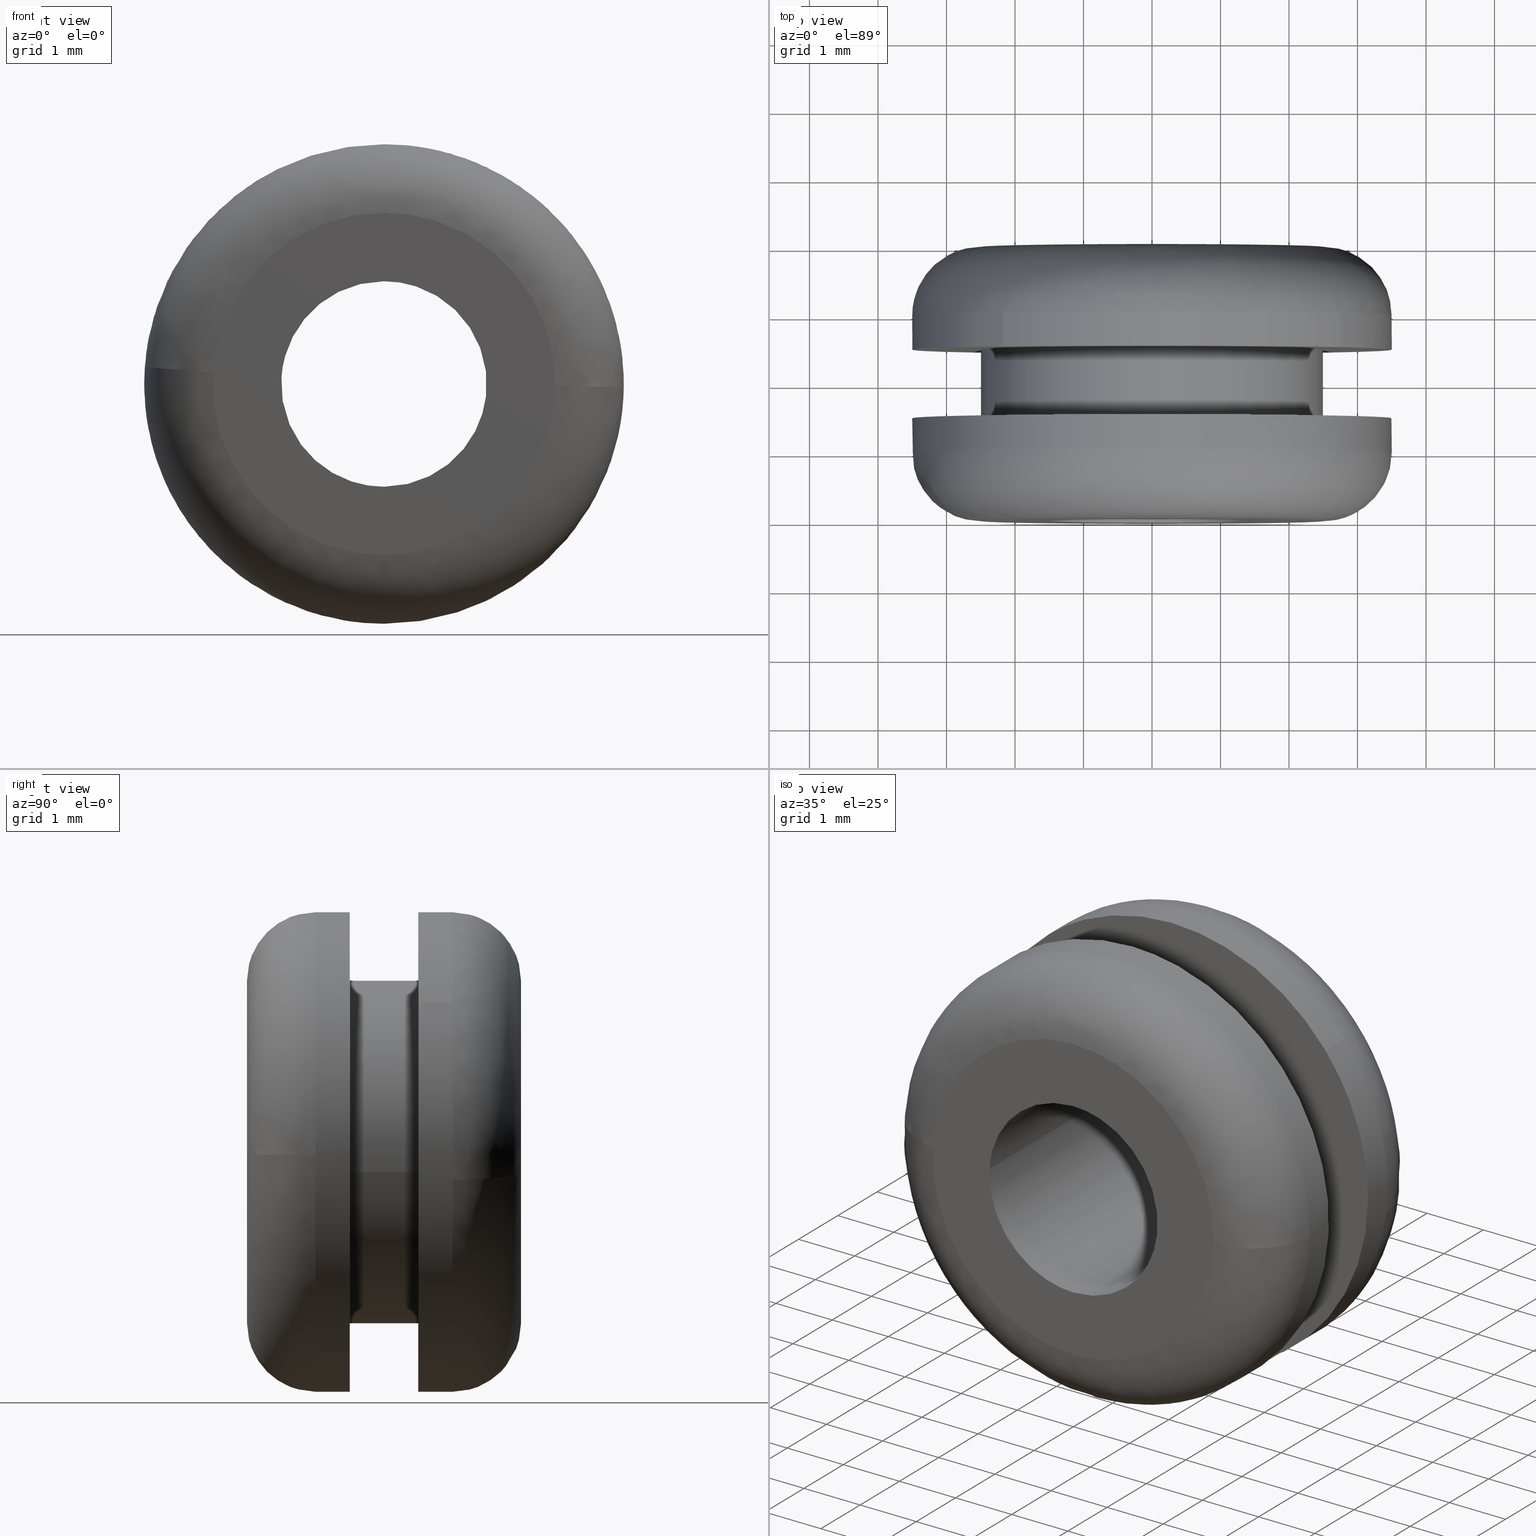
[diagram: canonical four-view strip — front | top / right | iso, engineering-drawing reading convention]
A machine part, canonical four-view strip (front | top / right | iso — engineering-drawing reading convention). The complete STEP part file that produces these views, byte-faithful:
ISO-10303-21;
HEADER;
/****************************************************************
 * Generated by software with PDE/Lib inside                    *
 * PDElib Version 4.4.1-0003, patched  Thursday August 19 11:58 *
 * International Technegroup Inc. (www.iti-oh.com)              *
 ****************************************************************/
FILE_DESCRIPTION((''),'2;1');
FILE_NAME('','2005-12-14T14:12:16',(''),(''),'','CADfix','');
FILE_SCHEMA(('AUTOMOTIVE_DESIGN'));
ENDSEC;
DATA;
#5=APPLICATION_CONTEXT('automotive design');
#6=APPLICATION_PROTOCOL_DEFINITION('Draft International Standard','automotive_design',1998,#5);
#7=PRODUCT_CONTEXT('None',#5,'mechanical');
#8=PRODUCT('grommet','','None',(#7));
#9=PRODUCT_RELATED_PRODUCT_CATEGORY('part','description',(#8));
#10=PRODUCT_DEFINITION_FORMATION('None','None',#8);
#11=PRODUCT_DEFINITION_CONTEXT('part definition',#5,'design');
#12=PRODUCT_DEFINITION('None','None',#10,#11);
#18=(NAMED_UNIT(*)PLANE_ANGLE_UNIT()SI_UNIT($,.RADIAN.));
#19=DIMENSIONAL_EXPONENTS(0.0,0.0,0.0,0.0,0.0,0.0,0.0);
#20=PLANE_ANGLE_MEASURE_WITH_UNIT(PLANE_ANGLE_MEASURE(0.017453292500000),#18);
#24=(CONVERSION_BASED_UNIT('DEGREE',#20)NAMED_UNIT(#19)PLANE_ANGLE_UNIT());
#28=(NAMED_UNIT(*)SI_UNIT($,.STERADIAN.)SOLID_ANGLE_UNIT());
#32=(LENGTH_UNIT()NAMED_UNIT(*)SI_UNIT(.MILLI.,.METRE.));
#34=UNCERTAINTY_MEASURE_WITH_UNIT(LENGTH_MEASURE(0.001000000000000),#32,'DISTANCE_ACCURACY_VALUE','');
#36=(GEOMETRIC_REPRESENTATION_CONTEXT(3)GLOBAL_UNCERTAINTY_ASSIGNED_CONTEXT((#34))GLOBAL_UNIT_ASSIGNED_CONTEXT((#24,#28,#32))REPRESENTATION_CONTEXT('None','None'));
#37=AXIS2_PLACEMENT_3D('',#38,#39,#40);
#38=CARTESIAN_POINT('',(0.0,0.0,0.0));
#39=DIRECTION('',(0.0,0.0,1.0));
#40=DIRECTION('',(1.0,0.0,0.0));
#41=ADVANCED_BREP_SHAPE_REPRESENTATION('',(#37,#1229),#36);
#42=PRODUCT_DEFINITION_SHAPE('','',#12);
#43=SHAPE_DEFINITION_REPRESENTATION(#42,#41);
#44=CARTESIAN_POINT('',(1.899551015351208,1.512500000000156,-2.939677863317372));
#45=CARTESIAN_POINT('',(2.069834292864542,1.512500000000156,-2.829644795839438));
#46=CARTESIAN_POINT('',(2.226273770972173,1.512500000000156,-2.700686041857019));
#47=CARTESIAN_POINT('',(4.926959812829193,1.512500000000157,-0.474412270884846));
#48=CARTESIAN_POINT('',(2.700686041857019,1.512500000000156,2.226273770972173));
#49=CARTESIAN_POINT('',(0.474412270884846,1.512500000000157,4.926959812829193));
#50=CARTESIAN_POINT('',(-2.226273770972173,1.512500000000156,2.700686041857018));
#51=CARTESIAN_POINT('',(-4.926959812829193,1.512500000000157,0.474412270884845));
#52=CARTESIAN_POINT('',(-2.700686041857019,1.512500000000156,-2.226273770972174));
#53=CARTESIAN_POINT('',(1.899551015351208,0.987187499993608,-2.939677863317372));
#54=CARTESIAN_POINT('',(2.069834292864542,0.987187499993608,-2.829644795839438));
#55=CARTESIAN_POINT('',(2.226273770972173,0.987187499993608,-2.700686041857019));
#56=CARTESIAN_POINT('',(4.926959812829193,0.987187499993608,-0.474412270884846));
#57=CARTESIAN_POINT('',(2.700686041857019,0.987187499993608,2.226273770972173));
#58=CARTESIAN_POINT('',(0.474412270884846,0.987187499993608,4.926959812829193));
#59=CARTESIAN_POINT('',(-2.226273770972173,0.987187499993608,2.700686041857018));
#60=CARTESIAN_POINT('',(-4.926959812829193,0.987187499993608,0.474412270884845));
#61=CARTESIAN_POINT('',(-2.700686041857019,0.987187499993608,-2.226273770972174));
#69=(BOUNDED_SURFACE()B_SPLINE_SURFACE(2,1,((#44,#53),(#45,#54),(#46,#55),(#47,#56),(#48,#57),(#49,#58),(#50,#59),(#51,#60),(#52,#61)),.UNSPECIFIED.,.F.,.F.,.U.)B_SPLINE_SURFACE_WITH_KNOTS((3,2,2,2,3),(2,2),(0.0,0.463919189857866,6.262909063081196,12.061898936304530,17.860888809527850),(0.0,1.0),.UNSPECIFIED.)GEOMETRIC_REPRESENTATION_ITEM()RATIONAL_B_SPLINE_SURFACE(((0.956886118190660,0.956886118190660),(0.976568542494924,0.976568542494924),(1.0,1.0),(0.707106781186548,0.707106781186548),(1.0,1.0),(0.707106781186548,0.707106781186548),(1.0,1.0),(0.707106781186548,0.707106781186548),(1.0,1.0)))REPRESENTATION_ITEM('')SURFACE());
#70=CARTESIAN_POINT('',(1.899550902462815,0.999999999998998,-2.939677936263048));
#71=VERTEX_POINT('',#70);
#72=CARTESIAN_POINT('',(3.499723654713332,0.999999999993827,-0.043981139593659));
#73=VERTEX_POINT('',#72);
#74=CARTESIAN_POINT('',(1.899550902462815,0.999999999998998,-2.939677936263049));
#75=CARTESIAN_POINT('',(3.476136032049741,0.999999999997180,-1.920925706134955));
#76=CARTESIAN_POINT('',(3.499723654713332,0.999999999993827,-0.043981139593659));
#84=(BOUNDED_CURVE()B_SPLINE_CURVE(2,(#74,#75,#76),.UNSPECIFIED.,.F.,.U.)B_SPLINE_CURVE_WITH_KNOTS((3,3),(0.092934731225705,0.247784295921535),.UNSPECIFIED.)CURVE()GEOMETRIC_REPRESENTATION_ITEM()RATIONAL_B_SPLINE_CURVE((0.863190106682967,0.816652486740030,0.994854295643567))REPRESENTATION_ITEM(''));
#85=EDGE_CURVE('',#71,#73,#84,.T.);
#86=ORIENTED_EDGE('',*,*,#85,.F.);
#87=CARTESIAN_POINT('',(1.899550911907788,1.500000000000000,-2.939677930160084));
#88=VERTEX_POINT('',#87);
#89=CARTESIAN_POINT('',(1.899550911907788,1.500000000000000,-2.939677930160084));
#90=CARTESIAN_POINT('',(1.899550902462815,0.999999999998998,-2.939677936263048));
#91=QUASI_UNIFORM_CURVE('',1,(#89,#90),.UNSPECIFIED.,.F.,.U.);
#92=EDGE_CURVE('',#88,#71,#91,.T.);
#93=ORIENTED_EDGE('',*,*,#92,.F.);
#94=CARTESIAN_POINT('',(0.0,1.500000000000000,3.500000000000000));
#95=VERTEX_POINT('',#94);
#96=CARTESIAN_POINT('',(1.899550911907787,1.500000000000000,-2.939677930160083));
#97=CARTESIAN_POINT('',(3.500000000000000,1.500000000000000,-1.905505356738358));
#98=CARTESIAN_POINT('',(3.500000000000000,1.500000000000000,-3.061516E-016));
#99=CARTESIAN_POINT('',(3.500000000000000,1.500000000000000,3.500000000000000));
#100=CARTESIAN_POINT('',(0.0,1.500000000000000,3.500000000000000));
#108=(BOUNDED_CURVE()B_SPLINE_CURVE(2,(#96,#97,#98,#99,#100),.UNSPECIFIED.,.F.,.U.)B_SPLINE_CURVE_WITH_KNOTS((3,2,3),(0.092934732206239,0.250000000000000,0.500000000000000),.UNSPECIFIED.)CURVE()GEOMETRIC_REPRESENTATION_ITEM()RATIONAL_B_SPLINE_CURVE((0.863190106093599,0.815986592608353,1.0,0.707106781186547,1.0))REPRESENTATION_ITEM(''));
#109=EDGE_CURVE('',#88,#95,#108,.T.);
#110=ORIENTED_EDGE('',*,*,#109,.T.);
#111=CARTESIAN_POINT('',(-2.700686089596179,1.500000000000000,-2.226273713059941));
#112=VERTEX_POINT('',#111);
#113=CARTESIAN_POINT('',(0.0,1.500000000000000,3.500000000000000));
#114=CARTESIAN_POINT('',(-3.500000000000000,1.500000000000000,3.500000000000000));
#115=CARTESIAN_POINT('',(-3.500000000000000,1.500000000000000,-3.061516E-016));
#116=CARTESIAN_POINT('',(-3.499999999999999,1.500000000000000,-1.256628318292117));
#117=CARTESIAN_POINT('',(-2.700686089596178,1.500000000000000,-2.226273713059940));
#125=(BOUNDED_CURVE()B_SPLINE_CURVE(2,(#113,#114,#115,#116,#117),.UNSPECIFIED.,.F.,.U.)B_SPLINE_CURVE_WITH_KNOTS((3,2,3),(0.500000000000000,0.750000000000000,0.860504619373458),.UNSPECIFIED.)CURVE()GEOMETRIC_REPRESENTATION_ITEM()RATIONAL_B_SPLINE_CURVE((1.0,0.707106781186547,1.0,0.870535785351809,0.855522720801075))REPRESENTATION_ITEM(''));
#126=EDGE_CURVE('',#95,#112,#125,.T.);
#127=ORIENTED_EDGE('',*,*,#126,.T.);
#128=CARTESIAN_POINT('',(-2.700686205911196,0.999999999999998,-2.226273571958513));
#129=VERTEX_POINT('',#128);
#130=CARTESIAN_POINT('',(-2.700686089596179,1.500000000000000,-2.226273713059941));
#131=CARTESIAN_POINT('',(-2.700686205911196,0.999999999999998,-2.226273571958513));
#132=QUASI_UNIFORM_CURVE('',1,(#130,#131),.UNSPECIFIED.,.F.,.U.);
#133=EDGE_CURVE('',#112,#129,#132,.T.);
#134=ORIENTED_EDGE('',*,*,#133,.T.);
#135=CARTESIAN_POINT('',(-3.491479858441498,0.999999999993767,0.244066380514253));
#136=VERTEX_POINT('',#135);
#137=CARTESIAN_POINT('',(-3.491479858441499,0.999999999993767,0.244066380514253));
#138=CARTESIAN_POINT('',(-3.500000000000000,1.0,0.122181905561697));
#139=CARTESIAN_POINT('',(-3.500000000000000,1.0,-3.061516E-016));
#140=CARTESIAN_POINT('',(-3.500000000000000,1.0,-1.256628111856989));
#141=CARTESIAN_POINT('',(-2.700686205911195,0.999999999999998,-2.226273571958514));
#149=(BOUNDED_CURVE()B_SPLINE_CURVE(2,(#137,#138,#139,#140,#141),.UNSPECIFIED.,.F.,.U.)B_SPLINE_CURVE_WITH_KNOTS((3,2,3),(0.737833686535114,0.750000000000000,0.860504603570302),.UNSPECIFIED.)CURVE()GEOMETRIC_REPRESENTATION_ITEM()RATIONAL_B_SPLINE_CURVE((0.972879876387024,0.985746277152705,1.0,0.870535803866358,0.855522725095084))REPRESENTATION_ITEM(''));
#150=EDGE_CURVE('',#136,#129,#149,.T.);
#151=ORIENTED_EDGE('',*,*,#150,.F.);
#152=CARTESIAN_POINT('',(0.0,1.0,3.500000000000000));
#153=VERTEX_POINT('',#152);
#154=CARTESIAN_POINT('',(0.0,1.0,3.500000000000000));
#155=CARTESIAN_POINT('',(-3.263878965432774,1.0,3.499999999999999));
#156=CARTESIAN_POINT('',(-3.491479858441499,0.999999999993767,0.244066380514253));
#164=(BOUNDED_CURVE()B_SPLINE_CURVE(2,(#154,#155,#156),.UNSPECIFIED.,.F.,.U.)B_SPLINE_CURVE_WITH_KNOTS((3,3),(0.500000000000000,0.737833686535114),.UNSPECIFIED.)CURVE()GEOMETRIC_REPRESENTATION_ITEM()RATIONAL_B_SPLINE_CURVE((1.0,0.721360504033843,0.972879876387023))REPRESENTATION_ITEM(''));
#165=EDGE_CURVE('',#153,#136,#164,.T.);
#166=ORIENTED_EDGE('',*,*,#165,.F.);
#167=CARTESIAN_POINT('',(3.499723654713332,0.999999999993827,-0.043981139593659));
#168=CARTESIAN_POINT('',(3.500000000000000,1.0,-0.021991437973539));
#169=CARTESIAN_POINT('',(3.500000000000000,1.0,-3.061516E-016));
#170=CARTESIAN_POINT('',(3.500000000000000,1.0,3.500000000000000));
#171=CARTESIAN_POINT('',(0.0,1.0,3.500000000000000));
#179=(BOUNDED_CURVE()B_SPLINE_CURVE(2,(#167,#168,#169,#170,#171),.UNSPECIFIED.,.F.,.U.)B_SPLINE_CURVE_WITH_KNOTS((3,2,3),(0.247784295921535,0.250000000000000,0.500000000000000),.UNSPECIFIED.)CURVE()GEOMETRIC_REPRESENTATION_ITEM()RATIONAL_B_SPLINE_CURVE((0.994854295643567,0.997404141202081,1.0,0.707106781186547,1.0))REPRESENTATION_ITEM(''));
#180=EDGE_CURVE('',#73,#153,#179,.T.);
#181=ORIENTED_EDGE('',*,*,#180,.F.);
#182=EDGE_LOOP('',(#86,#93,#110,#127,#134,#151,#166,#181));
#183=FACE_OUTER_BOUND('',#182,.T.);
#184=ADVANCED_FACE('',(#183),#69,.T.);
#185=CARTESIAN_POINT('',(-2.700686041857019,1.512500000000156,-2.226273770972174));
#186=CARTESIAN_POINT('',(-0.718207725037595,1.512500000000156,-4.631212277785017));
#187=CARTESIAN_POINT('',(1.899551015351208,1.512500000000156,-2.939677863317372));
#188=CARTESIAN_POINT('',(-2.700686041857019,0.987187499993608,-2.226273770972174));
#189=CARTESIAN_POINT('',(-0.718207725037595,0.987187499993608,-4.631212277785017));
#190=CARTESIAN_POINT('',(1.899551015351208,0.987187499993608,-2.939677863317372));
#198=(BOUNDED_SURFACE()B_SPLINE_SURFACE(2,1,((#185,#188),(#186,#189),(#187,#190)),.UNSPECIFIED.,.F.,.F.,.U.)B_SPLINE_SURFACE_WITH_KNOTS((3,3),(2,2),(0.0,5.329218847202446),(0.0,1.0),.UNSPECIFIED.)GEOMETRIC_REPRESENTATION_ITEM()RATIONAL_B_SPLINE_SURFACE(((1.0,1.0),(0.730538238691624,0.730538238691624),(0.956886118190660,0.956886118190660)))REPRESENTATION_ITEM('')SURFACE());
#199=CARTESIAN_POINT('',(0.0,1.0,-3.500000000000000));
#200=VERTEX_POINT('',#199);
#201=CARTESIAN_POINT('',(0.0,1.0,-3.500000000000000));
#202=CARTESIAN_POINT('',(1.032416178883929,1.0,-3.500000000000001));
#203=CARTESIAN_POINT('',(1.899550902462815,0.999999999998998,-2.939677936263049));
#211=(BOUNDED_CURVE()B_SPLINE_CURVE(2,(#201,#202,#203),.UNSPECIFIED.,.F.,.U.)B_SPLINE_CURVE_WITH_KNOTS((3,3),(0.0,0.092934731225705),.UNSPECIFIED.)CURVE()GEOMETRIC_REPRESENTATION_ITEM()RATIONAL_B_SPLINE_CURVE((1.0,0.891120189726961,0.863190106682967))REPRESENTATION_ITEM(''));
#212=EDGE_CURVE('',#200,#71,#211,.T.);
#213=ORIENTED_EDGE('',*,*,#212,.F.);
#214=CARTESIAN_POINT('',(-2.700686205911196,0.999999999999998,-2.226273571958513));
#215=CARTESIAN_POINT('',(-1.650707480983870,1.0,-3.500000000000001));
#216=CARTESIAN_POINT('',(0.0,1.0,-3.500000000000000));
#224=(BOUNDED_CURVE()B_SPLINE_CURVE(2,(#214,#215,#216),.UNSPECIFIED.,.F.,.U.)B_SPLINE_CURVE_WITH_KNOTS((3,3),(0.860504603570303,1.0),.UNSPECIFIED.)CURVE()GEOMETRIC_REPRESENTATION_ITEM()RATIONAL_B_SPLINE_CURVE((0.855522725095084,0.836570977320189,1.0))REPRESENTATION_ITEM(''));
#225=EDGE_CURVE('',#129,#200,#224,.T.);
#226=ORIENTED_EDGE('',*,*,#225,.F.);
#227=ORIENTED_EDGE('',*,*,#133,.F.);
#228=CARTESIAN_POINT('',(0.0,1.500000000000000,-3.500000000000000));
#229=VERTEX_POINT('',#228);
#230=CARTESIAN_POINT('',(-2.700686089596178,1.500000000000000,-2.226273713059940));
#231=CARTESIAN_POINT('',(-1.650707257445918,1.500000000000000,-3.500000000000000));
#232=CARTESIAN_POINT('',(0.0,1.500000000000000,-3.500000000000000));
#240=(BOUNDED_CURVE()B_SPLINE_CURVE(2,(#230,#231,#232),.UNSPECIFIED.,.F.,.U.)B_SPLINE_CURVE_WITH_KNOTS((3,3),(0.860504619373459,1.0),.UNSPECIFIED.)CURVE()GEOMETRIC_REPRESENTATION_ITEM()RATIONAL_B_SPLINE_CURVE((0.855522720801075,0.836570995834738,1.0))REPRESENTATION_ITEM(''));
#241=EDGE_CURVE('',#112,#229,#240,.T.);
#242=ORIENTED_EDGE('',*,*,#241,.T.);
#243=CARTESIAN_POINT('',(0.0,1.500000000000000,-3.500000000000000));
#244=CARTESIAN_POINT('',(1.032416191107638,1.500000000000000,-3.500000000000000));
#245=CARTESIAN_POINT('',(1.899550911907787,1.500000000000000,-2.939677930160083));
#253=(BOUNDED_CURVE()B_SPLINE_CURVE(2,(#243,#244,#245),.UNSPECIFIED.,.F.,.U.)B_SPLINE_CURVE_WITH_KNOTS((3,3),(0.0,0.092934732206239),.UNSPECIFIED.)CURVE()GEOMETRIC_REPRESENTATION_ITEM()RATIONAL_B_SPLINE_CURVE((1.0,0.891120188578194,0.863190106093599))REPRESENTATION_ITEM(''));
#254=EDGE_CURVE('',#229,#88,#253,.T.);
#255=ORIENTED_EDGE('',*,*,#254,.T.);
#256=ORIENTED_EDGE('',*,*,#92,.T.);
#257=EDGE_LOOP('',(#213,#226,#227,#242,#255,#256));
#258=FACE_OUTER_BOUND('',#257,.T.);
#259=ADVANCED_FACE('',(#258),#198,.T.);
#260=CARTESIAN_POINT('',(2.482523815909166,2.525000000000000,-0.295085586641897));
#261=CARTESIAN_POINT('',(2.490969038621514,2.525000000000000,-0.224036821594944));
#262=CARTESIAN_POINT('',(2.495336996054667,2.525000000000000,-0.152621348837143));
#263=CARTESIAN_POINT('',(2.647958344891809,2.525000000000000,2.342715647217524));
#264=CARTESIAN_POINT('',(0.152621348837143,2.525000000000000,2.495336996054666));
#265=CARTESIAN_POINT('',(-2.342715647217524,2.525000000000000,2.647958344891809));
#266=CARTESIAN_POINT('',(-2.495336996054667,2.525000000000000,0.152621348837142));
#267=CARTESIAN_POINT('',(2.482523815909166,1.474375000000000,-0.295085586641897));
#268=CARTESIAN_POINT('',(2.490969038621514,1.474375000000000,-0.224036821594944));
#269=CARTESIAN_POINT('',(2.495336996054667,1.474375000000000,-0.152621348837143));
#270=CARTESIAN_POINT('',(2.647958344891809,1.474375000000000,2.342715647217524));
#271=CARTESIAN_POINT('',(0.152621348837143,1.474375000000000,2.495336996054666));
#272=CARTESIAN_POINT('',(-2.342715647217524,1.474375000000000,2.647958344891809));
#273=CARTESIAN_POINT('',(-2.495336996054667,1.474375000000000,0.152621348837142));
#281=(BOUNDED_SURFACE()B_SPLINE_SURFACE(2,1,((#260,#267),(#261,#268),(#262,#269),(#263,#270),(#264,#271),(#265,#272),(#266,#273)),.UNSPECIFIED.,.F.,.F.,.U.)B_SPLINE_SURFACE_WITH_KNOTS((3,2,2,3),(2,2),(0.0,0.165685424949238,4.307821048680188,8.449956672411137),(0.0,1.0),.UNSPECIFIED.)GEOMETRIC_REPRESENTATION_ITEM()RATIONAL_B_SPLINE_SURFACE(((0.977505800795127,0.977505800795127),(0.988284271247462,0.988284271247462),(1.0,1.0),(0.707106781186548,0.707106781186548),(1.0,1.0),(0.707106781186548,0.707106781186548),(1.0,1.0)))REPRESENTATION_ITEM('')SURFACE());
#282=CARTESIAN_POINT('',(2.482524111118502,1.499999999999978,-0.295083103055794));
#283=VERTEX_POINT('',#282);
#284=CARTESIAN_POINT('',(0.0,1.500000000000000,2.500000000000000));
#285=VERTEX_POINT('',#284);
#286=CARTESIAN_POINT('',(2.482524111118501,1.499999999999978,-0.295083103055794));
#287=CARTESIAN_POINT('',(2.500000000000000,1.500000000000000,-0.148059044208833));
#288=CARTESIAN_POINT('',(2.500000000000000,1.500000000000000,-3.061516E-016));
#289=CARTESIAN_POINT('',(2.500000000000000,1.500000000000000,2.500000000000000));
#290=CARTESIAN_POINT('',(0.0,1.500000000000000,2.500000000000000));
#298=(BOUNDED_CURVE()B_SPLINE_CURVE(2,(#286,#287,#288,#289,#290),.UNSPECIFIED.,.F.,.U.)B_SPLINE_CURVE_WITH_KNOTS((3,2,3),(0.229562642591221,0.250000000000000,0.500000000000000),.UNSPECIFIED.)CURVE()GEOMETRIC_REPRESENTATION_ITEM()RATIONAL_B_SPLINE_CURVE((0.956027085583204,0.976056146418007,1.0,0.707106781186548,1.0))REPRESENTATION_ITEM(''));
#299=EDGE_CURVE('',#283,#285,#298,.T.);
#300=ORIENTED_EDGE('',*,*,#299,.F.);
#301=CARTESIAN_POINT('',(2.482524107474519,2.500000000000000,-0.295083133712754));
#302=VERTEX_POINT('',#301);
#303=CARTESIAN_POINT('',(2.482524107474519,2.500000000000000,-0.295083133712754));
#304=CARTESIAN_POINT('',(2.482524111118502,1.499999999999978,-0.295083103055794));
#305=QUASI_UNIFORM_CURVE('',1,(#303,#304),.UNSPECIFIED.,.F.,.U.);
#306=EDGE_CURVE('',#302,#283,#305,.T.);
#307=ORIENTED_EDGE('',*,*,#306,.F.);
#308=CARTESIAN_POINT('',(0.0,2.500000000000000,2.500000000000000));
#309=VERTEX_POINT('',#308);
#310=CARTESIAN_POINT('',(2.482524107474519,2.500000000000000,-0.295083133712754));
#311=CARTESIAN_POINT('',(2.500000000000000,2.500000000000000,-0.148059059699360));
#312=CARTESIAN_POINT('',(2.500000000000000,2.500000000000000,-3.061516E-016));
#313=CARTESIAN_POINT('',(2.500000000000000,2.500000000000000,2.500000000000000));
#314=CARTESIAN_POINT('',(0.0,2.500000000000000,2.500000000000000));
#322=(BOUNDED_CURVE()B_SPLINE_CURVE(2,(#310,#311,#312,#313,#314),.UNSPECIFIED.,.F.,.U.)B_SPLINE_CURVE_WITH_KNOTS((3,2,3),(0.229562640504181,0.250000000000000,0.500000000000000),.UNSPECIFIED.)CURVE()GEOMETRIC_REPRESENTATION_ITEM()RATIONAL_B_SPLINE_CURVE((0.956027081492513,0.976056143972888,1.0,0.707106781186548,1.0))REPRESENTATION_ITEM(''));
#323=EDGE_CURVE('',#302,#309,#322,.T.);
#324=ORIENTED_EDGE('',*,*,#323,.T.);
#325=CARTESIAN_POINT('',(-2.495337147131862,2.500000000000000,0.152618878706711));
#326=VERTEX_POINT('',#325);
#327=CARTESIAN_POINT('',(0.0,2.500000000000000,2.500000000000000));
#328=CARTESIAN_POINT('',(-2.351767499624391,2.500000000000000,2.499999999999999));
#329=CARTESIAN_POINT('',(-2.495337147131862,2.500000000000000,0.152618878706711));
#337=(BOUNDED_CURVE()B_SPLINE_CURVE(2,(#327,#328,#329),.UNSPECIFIED.,.F.,.U.)B_SPLINE_CURVE_WITH_KNOTS((3,3),(0.500000000000000,0.739333133045804),.UNSPECIFIED.)CURVE()GEOMETRIC_REPRESENTATION_ITEM()RATIONAL_B_SPLINE_CURVE((1.0,0.719603793174025,0.976072407738609))REPRESENTATION_ITEM(''));
#338=EDGE_CURVE('',#309,#326,#337,.T.);
#339=ORIENTED_EDGE('',*,*,#338,.T.);
#340=CARTESIAN_POINT('',(-2.495337149020197,1.499999999999977,0.152618847831694));
#341=VERTEX_POINT('',#340);
#342=CARTESIAN_POINT('',(-2.495337147131862,2.500000000000000,0.152618878706711));
#343=CARTESIAN_POINT('',(-2.495337149020197,1.499999999999977,0.152618847831694));
#344=QUASI_UNIFORM_CURVE('',1,(#342,#343),.UNSPECIFIED.,.F.,.U.);
#345=EDGE_CURVE('',#326,#341,#344,.T.);
#346=ORIENTED_EDGE('',*,*,#345,.T.);
#347=CARTESIAN_POINT('',(0.0,1.500000000000000,2.500000000000000));
#348=CARTESIAN_POINT('',(-2.351767528777383,1.500000000000000,2.500000000000000));
#349=CARTESIAN_POINT('',(-2.495337149020198,1.499999999999977,0.152618847831694));
#357=(BOUNDED_CURVE()B_SPLINE_CURVE(2,(#347,#348,#349),.UNSPECIFIED.,.F.,.U.)B_SPLINE_CURVE_WITH_KNOTS((3,3),(0.500000000000000,0.739333135180741),.UNSPECIFIED.)CURVE()GEOMETRIC_REPRESENTATION_ITEM()RATIONAL_B_SPLINE_CURVE((1.0,0.719603790672791,0.976072412314192))REPRESENTATION_ITEM(''));
#358=EDGE_CURVE('',#285,#341,#357,.T.);
#359=ORIENTED_EDGE('',*,*,#358,.F.);
#360=EDGE_LOOP('',(#300,#307,#324,#339,#346,#359));
#361=FACE_OUTER_BOUND('',#360,.T.);
#362=ADVANCED_FACE('',(#361),#281,.T.);
#363=CARTESIAN_POINT('',(-2.495336996054667,2.525000000000000,0.152621348837142));
#364=CARTESIAN_POINT('',(-2.647958344891809,2.525000000000000,-2.342715647217524));
#365=CARTESIAN_POINT('',(-0.152621348837143,2.525000000000000,-2.495336996054667));
#366=CARTESIAN_POINT('',(2.203858727098751,2.525000000000000,-2.639465491831319));
#367=CARTESIAN_POINT('',(2.482523815909166,2.525000000000000,-0.295085586641897));
#368=CARTESIAN_POINT('',(-2.495336996054667,1.474375000000000,0.152621348837142));
#369=CARTESIAN_POINT('',(-2.647958344891809,1.474375000000000,-2.342715647217524));
#370=CARTESIAN_POINT('',(-0.152621348837143,1.474375000000000,-2.495336996054667));
#371=CARTESIAN_POINT('',(2.203858727098751,1.474375000000000,-2.639465491831319));
#372=CARTESIAN_POINT('',(2.482523815909166,1.474375000000000,-0.295085586641897));
#380=(BOUNDED_SURFACE()B_SPLINE_SURFACE(2,1,((#363,#368),(#364,#369),(#365,#370),(#366,#371),(#367,#372)),.UNSPECIFIED.,.F.,.F.,.U.)B_SPLINE_SURFACE_WITH_KNOTS((3,2,3),(2,2),(0.0,4.142135623730949,8.118585822512660),(0.0,1.0),.UNSPECIFIED.)GEOMETRIC_REPRESENTATION_ITEM()RATIONAL_B_SPLINE_SURFACE(((1.0,1.0),(0.707106781186548,0.707106781186548),(1.0,1.0),(0.718822509939086,0.718822509939086),(0.977505800795127,0.977505800795127)))REPRESENTATION_ITEM('')SURFACE());
#381=CARTESIAN_POINT('',(0.0,1.500000000000000,-2.500000000000000));
#382=VERTEX_POINT('',#381);
#383=CARTESIAN_POINT('',(0.0,1.500000000000000,-2.500000000000000));
#384=CARTESIAN_POINT('',(2.220438551903459,1.500000000000000,-2.500000000000001));
#385=CARTESIAN_POINT('',(2.482524111118501,1.499999999999978,-0.295083103055794));
#393=(BOUNDED_CURVE()B_SPLINE_CURVE(2,(#383,#384,#385),.UNSPECIFIED.,.F.,.U.)B_SPLINE_CURVE_WITH_KNOTS((3,3),(0.0,0.229562642591221),.UNSPECIFIED.)CURVE()GEOMETRIC_REPRESENTATION_ITEM()RATIONAL_B_SPLINE_CURVE((1.0,0.731050634768540,0.956027085583204))REPRESENTATION_ITEM(''));
#394=EDGE_CURVE('',#382,#283,#393,.T.);
#395=ORIENTED_EDGE('',*,*,#394,.F.);
#396=CARTESIAN_POINT('',(-2.495337149020198,1.499999999999977,0.152618847831694));
#397=CARTESIAN_POINT('',(-2.500000000000000,1.500000000000000,0.076380654237556));
#398=CARTESIAN_POINT('',(-2.500000000000000,1.500000000000000,-3.061516E-016));
#399=CARTESIAN_POINT('',(-2.500000000000000,1.500000000000000,-2.500000000000000));
#400=CARTESIAN_POINT('',(0.0,1.500000000000000,-2.500000000000000));
#408=(BOUNDED_CURVE()B_SPLINE_CURVE(2,(#396,#397,#398,#399,#400),.UNSPECIFIED.,.F.,.U.)B_SPLINE_CURVE_WITH_KNOTS((3,2,3),(0.739333135180741,0.750000000000000,1.0),.UNSPECIFIED.)CURVE()GEOMETRIC_REPRESENTATION_ITEM()RATIONAL_B_SPLINE_CURVE((0.976072412314192,0.987502990513757,1.0,0.707106781186548,1.0))REPRESENTATION_ITEM(''));
#409=EDGE_CURVE('',#341,#382,#408,.T.);
#410=ORIENTED_EDGE('',*,*,#409,.F.);
#411=ORIENTED_EDGE('',*,*,#345,.F.);
#412=CARTESIAN_POINT('',(0.0,2.500000000000000,-2.500000000000000));
#413=VERTEX_POINT('',#412);
#414=CARTESIAN_POINT('',(-2.495337147131862,2.500000000000000,0.152618878706711));
#415=CARTESIAN_POINT('',(-2.500000000000000,2.500000000000000,0.076380669718347));
#416=CARTESIAN_POINT('',(-2.500000000000000,2.500000000000000,-3.061516E-016));
#417=CARTESIAN_POINT('',(-2.500000000000000,2.500000000000000,-2.500000000000000));
#418=CARTESIAN_POINT('',(0.0,2.500000000000000,-2.500000000000000));
#426=(BOUNDED_CURVE()B_SPLINE_CURVE(2,(#414,#415,#416,#417,#418),.UNSPECIFIED.,.F.,.U.)B_SPLINE_CURVE_WITH_KNOTS((3,2,3),(0.739333133045804,0.750000000000000,1.0),.UNSPECIFIED.)CURVE()GEOMETRIC_REPRESENTATION_ITEM()RATIONAL_B_SPLINE_CURVE((0.976072407738609,0.987502988012523,1.0,0.707106781186548,1.0))REPRESENTATION_ITEM(''));
#427=EDGE_CURVE('',#326,#413,#426,.T.);
#428=ORIENTED_EDGE('',*,*,#427,.T.);
#429=CARTESIAN_POINT('',(0.0,2.500000000000000,-2.500000000000000));
#430=CARTESIAN_POINT('',(2.220438524289997,2.500000000000000,-2.500000000000000));
#431=CARTESIAN_POINT('',(2.482524107474519,2.500000000000000,-0.295083133712754));
#439=(BOUNDED_CURVE()B_SPLINE_CURVE(2,(#429,#430,#431),.UNSPECIFIED.,.F.,.U.)B_SPLINE_CURVE_WITH_KNOTS((3,3),(0.0,0.229562640504181),.UNSPECIFIED.)CURVE()GEOMETRIC_REPRESENTATION_ITEM()RATIONAL_B_SPLINE_CURVE((1.0,0.731050637213660,0.956027081492513))REPRESENTATION_ITEM(''));
#440=EDGE_CURVE('',#413,#302,#439,.T.);
#441=ORIENTED_EDGE('',*,*,#440,.T.);
#442=ORIENTED_EDGE('',*,*,#306,.T.);
#443=EDGE_LOOP('',(#395,#410,#411,#428,#441,#442));
#444=FACE_OUTER_BOUND('',#443,.T.);
#445=ADVANCED_FACE('',(#444),#380,.T.);
#446=CARTESIAN_POINT('',(-2.178801228231668,3.012500000007188,2.739128548983447));
#447=CARTESIAN_POINT('',(-4.917929777215115,3.012500000007187,0.560327320751779));
#448=CARTESIAN_POINT('',(-2.739128548983448,3.012500000007188,-2.178801228231668));
#449=CARTESIAN_POINT('',(-0.560327320751780,3.012500000007187,-4.917929777215116));
#450=CARTESIAN_POINT('',(2.178801228231668,3.012500000007188,-2.739128548983448));
#451=CARTESIAN_POINT('',(4.917929777215115,3.012500000007187,-0.560327320751780));
#452=CARTESIAN_POINT('',(2.739128548983448,3.012500000007188,2.178801228231667));
#453=CARTESIAN_POINT('',(-2.178801228231668,2.487187499999820,2.739128548983447));
#454=CARTESIAN_POINT('',(-4.917929777215115,2.487187499999820,0.560327320751779));
#455=CARTESIAN_POINT('',(-2.739128548983448,2.487187499999820,-2.178801228231668));
#456=CARTESIAN_POINT('',(-0.560327320751780,2.487187499999820,-4.917929777215116));
#457=CARTESIAN_POINT('',(2.178801228231668,2.487187499999820,-2.739128548983448));
#458=CARTESIAN_POINT('',(4.917929777215115,2.487187499999820,-0.560327320751780));
#459=CARTESIAN_POINT('',(2.739128548983448,2.487187499999820,2.178801228231667));
#467=(BOUNDED_SURFACE()B_SPLINE_SURFACE(2,1,((#446,#453),(#447,#454),(#448,#455),(#449,#456),(#450,#457),(#451,#458),(#452,#459)),.UNSPECIFIED.,.F.,.F.,.U.)B_SPLINE_SURFACE_WITH_KNOTS((3,2,2,3),(2,2),(0.0,5.798989873223329,11.597979746446660,17.396969619669989),(0.0,1.0),.UNSPECIFIED.)GEOMETRIC_REPRESENTATION_ITEM()RATIONAL_B_SPLINE_SURFACE(((1.0,1.0),(0.707106781186548,0.707106781186548),(1.0,1.0),(0.707106781186548,0.707106781186548),(1.0,1.0),(0.707106781186548,0.707106781186548),(1.0,1.0)))REPRESENTATION_ITEM('')SURFACE());
#468=CARTESIAN_POINT('',(-2.178800832572884,3.000000000001514,2.739128863704560));
#469=VERTEX_POINT('',#468);
#470=CARTESIAN_POINT('',(-3.499999999999999,3.000000000007013,6.637321E-016));
#471=VERTEX_POINT('',#470);
#472=CARTESIAN_POINT('',(-2.178800832572885,3.000000000001514,2.739128863704560));
#473=CARTESIAN_POINT('',(-3.499999999999992,3.000000000003630,1.688200216047647));
#474=CARTESIAN_POINT('',(-3.499999999999999,3.000000000007013,6.637321E-016));
#482=(BOUNDED_CURVE()B_SPLINE_CURVE(2,(#472,#473,#474),.UNSPECIFIED.,.F.,.U.)B_SPLINE_CURVE_WITH_KNOTS((3,3),(0.607863833660169,0.749999999999999),.UNSPECIFIED.)CURVE()GEOMETRIC_REPRESENTATION_ITEM()RATIONAL_B_SPLINE_CURVE((0.856305632691425,0.833477122923691,0.999999999999998))REPRESENTATION_ITEM(''));
#483=EDGE_CURVE('',#469,#471,#482,.T.);
#484=ORIENTED_EDGE('',*,*,#483,.T.);
#485=CARTESIAN_POINT('',(0.0,3.0,-3.500000000000000));
#486=VERTEX_POINT('',#485);
#487=CARTESIAN_POINT('',(-3.500000000000000,3.000000000007014,6.637321E-016));
#488=CARTESIAN_POINT('',(-3.500000000000001,3.0,-3.500000000000000));
#489=CARTESIAN_POINT('',(0.0,3.0,-3.500000000000000));
#497=(BOUNDED_CURVE()B_SPLINE_CURVE(2,(#487,#488,#489),.UNSPECIFIED.,.F.,.U.)B_SPLINE_CURVE_WITH_KNOTS((3,3),(0.750000000000000,1.0),.UNSPECIFIED.)CURVE()GEOMETRIC_REPRESENTATION_ITEM()RATIONAL_B_SPLINE_CURVE((1.0,0.707106781186547,1.0))REPRESENTATION_ITEM(''));
#498=EDGE_CURVE('',#471,#486,#497,.T.);
#499=ORIENTED_EDGE('',*,*,#498,.T.);
#500=CARTESIAN_POINT('',(3.476590735747605,3.000000000006980,-0.404124802646315));
#501=VERTEX_POINT('',#500);
#502=CARTESIAN_POINT('',(0.0,3.0,-3.500000000000000));
#503=CARTESIAN_POINT('',(3.116720952891494,3.0,-3.500000000000002));
#504=CARTESIAN_POINT('',(3.476590735747605,3.000000000006981,-0.404124802646315));
#512=(BOUNDED_CURVE()B_SPLINE_CURVE(2,(#502,#503,#504),.UNSPECIFIED.,.F.,.U.)B_SPLINE_CURVE_WITH_KNOTS((3,3),(0.0,0.229999999999849),.UNSPECIFIED.)CURVE()GEOMETRIC_REPRESENTATION_ITEM()RATIONAL_B_SPLINE_CURVE((1.0,0.730538238691801,0.956886118190362))REPRESENTATION_ITEM(''));
#513=EDGE_CURVE('',#486,#501,#512,.T.);
#514=ORIENTED_EDGE('',*,*,#513,.T.);
#515=CARTESIAN_POINT('',(2.739128864374870,2.999999999999987,2.178800831730190));
#516=VERTEX_POINT('',#515);
#517=CARTESIAN_POINT('',(3.476590735747605,3.000000000006981,-0.404124802646315));
#518=CARTESIAN_POINT('',(3.500000000000000,3.000000000000000,-0.202740401844141));
#519=CARTESIAN_POINT('',(3.500000000000000,3.0,-3.061516E-016));
#520=CARTESIAN_POINT('',(3.500000000000000,3.000000000000000,1.222254148548687));
#521=CARTESIAN_POINT('',(2.739128864374871,2.999999999999988,2.178800831730190));
#529=(BOUNDED_CURVE()B_SPLINE_CURVE(2,(#517,#518,#519,#520,#521),.UNSPECIFIED.,.F.,.U.)B_SPLINE_CURVE_WITH_KNOTS((3,2,3),(0.229999999999849,0.250000000000000,0.357863833567029),.UNSPECIFIED.)CURVE()GEOMETRIC_REPRESENTATION_ITEM()RATIONAL_B_SPLINE_CURVE((0.956886118190362,0.976568542494746,1.0,0.873629658371978,0.856305632721344))REPRESENTATION_ITEM(''));
#530=EDGE_CURVE('',#501,#516,#529,.T.);
#531=ORIENTED_EDGE('',*,*,#530,.T.);
#532=CARTESIAN_POINT('',(2.739128914882338,2.500000000000000,2.178800768233560));
#533=VERTEX_POINT('',#532);
#534=CARTESIAN_POINT('',(2.739128864374870,2.999999999999987,2.178800831730190));
#535=CARTESIAN_POINT('',(2.739128914882338,2.500000000000000,2.178800768233560));
#536=QUASI_UNIFORM_CURVE('',1,(#534,#535),.UNSPECIFIED.,.F.,.U.);
#537=EDGE_CURVE('',#516,#533,#536,.T.);
#538=ORIENTED_EDGE('',*,*,#537,.T.);
#539=CARTESIAN_POINT('',(0.0,2.500000000000000,-3.500000000000000));
#540=VERTEX_POINT('',#539);
#541=CARTESIAN_POINT('',(0.0,2.500000000000000,-3.500000000000000));
#542=CARTESIAN_POINT('',(3.500000000000000,2.500000000000000,-3.500000000000001));
#543=CARTESIAN_POINT('',(3.500000000000000,2.500000000000000,-3.061516E-016));
#544=CARTESIAN_POINT('',(3.500000000000000,2.500000000000000,1.222254057519584));
#545=CARTESIAN_POINT('',(2.739128914882338,2.500000000000000,2.178800768233560));
#553=(BOUNDED_CURVE()B_SPLINE_CURVE(2,(#541,#542,#543,#544,#545),.UNSPECIFIED.,.F.,.U.)B_SPLINE_CURVE_WITH_KNOTS((3,2,3),(0.0,0.250000000000000,0.357863826548889),.UNSPECIFIED.)CURVE()GEOMETRIC_REPRESENTATION_ITEM()RATIONAL_B_SPLINE_CURVE((1.0,0.707106781186547,1.0,0.873629666594239,0.856305634975713))REPRESENTATION_ITEM(''));
#554=EDGE_CURVE('',#540,#533,#553,.T.);
#555=ORIENTED_EDGE('',*,*,#554,.F.);
#556=CARTESIAN_POINT('',(-2.178800837339518,2.500000000000000,2.739128859913013));
#557=VERTEX_POINT('',#556);
#558=CARTESIAN_POINT('',(-2.178800837339518,2.500000000000000,2.739128859913013));
#559=CARTESIAN_POINT('',(-3.500000000000000,2.500000000000000,1.688200208539917));
#560=CARTESIAN_POINT('',(-3.500000000000000,2.500000000000000,-3.061516E-016));
#561=CARTESIAN_POINT('',(-3.500000000000000,2.500000000000000,-3.500000000000001));
#562=CARTESIAN_POINT('',(0.0,2.500000000000000,-3.500000000000000));
#570=(BOUNDED_CURVE()B_SPLINE_CURVE(2,(#558,#559,#560,#561,#562),.UNSPECIFIED.,.F.,.U.)B_SPLINE_CURVE_WITH_KNOTS((3,2,3),(0.607863834187015,0.750000000000000,1.0),.UNSPECIFIED.)CURVE()GEOMETRIC_REPRESENTATION_ITEM()RATIONAL_B_SPLINE_CURVE((0.856305632522192,0.833477123540928,1.0,0.707106781186547,1.0))REPRESENTATION_ITEM(''));
#571=EDGE_CURVE('',#557,#540,#570,.T.);
#572=ORIENTED_EDGE('',*,*,#571,.F.);
#573=CARTESIAN_POINT('',(-2.178800832572884,3.000000000001514,2.739128863704560));
#574=CARTESIAN_POINT('',(-2.178800837339518,2.500000000000000,2.739128859913013));
#575=QUASI_UNIFORM_CURVE('',1,(#573,#574),.UNSPECIFIED.,.F.,.U.);
#576=EDGE_CURVE('',#469,#557,#575,.T.);
#577=ORIENTED_EDGE('',*,*,#576,.F.);
#578=EDGE_LOOP('',(#484,#499,#514,#531,#538,#555,#572,#577));
#579=FACE_OUTER_BOUND('',#578,.T.);
#580=ADVANCED_FACE('',(#579),#467,.T.);
#581=CARTESIAN_POINT('',(2.739128548983448,3.012500000007188,2.178801228231667));
#582=CARTESIAN_POINT('',(0.560327320751780,3.012500000007187,4.917929777215115));
#583=CARTESIAN_POINT('',(-2.178801228231668,3.012500000007188,2.739128548983447));
#584=CARTESIAN_POINT('',(2.739128548983448,2.487187499999820,2.178801228231667));
#585=CARTESIAN_POINT('',(0.560327320751780,2.487187499999820,4.917929777215115));
#586=CARTESIAN_POINT('',(-2.178801228231668,2.487187499999820,2.739128548983447));
#594=(BOUNDED_SURFACE()B_SPLINE_SURFACE(2,1,((#581,#584),(#582,#585),(#583,#586)),.UNSPECIFIED.,.F.,.F.,.U.)B_SPLINE_SURFACE_WITH_KNOTS((3,3),(2,2),(0.0,5.798989873223329),(0.0,1.0),.UNSPECIFIED.)GEOMETRIC_REPRESENTATION_ITEM()RATIONAL_B_SPLINE_SURFACE(((1.0,1.0),(0.707106781186548,0.707106781186548),(1.0,1.0)))REPRESENTATION_ITEM('')SURFACE());
#595=CARTESIAN_POINT('',(0.0,3.0,3.500000000000000));
#596=VERTEX_POINT('',#595);
#597=CARTESIAN_POINT('',(0.0,3.0,3.500000000000000));
#598=CARTESIAN_POINT('',(-1.222254149756769,3.000000000000001,3.500000000000000));
#599=CARTESIAN_POINT('',(-2.178800832572884,3.000000000001514,2.739128863704560));
#607=(BOUNDED_CURVE()B_SPLINE_CURVE(2,(#597,#598,#599),.UNSPECIFIED.,.F.,.U.)B_SPLINE_CURVE_WITH_KNOTS((3,3),(0.500000000000000,0.607863833660169),.UNSPECIFIED.)CURVE()GEOMETRIC_REPRESENTATION_ITEM()RATIONAL_B_SPLINE_CURVE((1.0,0.873629658262857,0.856305632691425))REPRESENTATION_ITEM(''));
#608=EDGE_CURVE('',#596,#469,#607,.T.);
#609=ORIENTED_EDGE('',*,*,#608,.T.);
#610=ORIENTED_EDGE('',*,*,#576,.T.);
#611=CARTESIAN_POINT('',(0.0,2.500000000000000,3.500000000000000));
#612=VERTEX_POINT('',#611);
#613=CARTESIAN_POINT('',(0.0,2.500000000000000,3.500000000000000));
#614=CARTESIAN_POINT('',(-1.222254156590240,2.500000000000000,3.500000000000001));
#615=CARTESIAN_POINT('',(-2.178800837339517,2.500000000000000,2.739128859913012));
#623=(BOUNDED_CURVE()B_SPLINE_CURVE(2,(#613,#614,#615),.UNSPECIFIED.,.F.,.U.)B_SPLINE_CURVE_WITH_KNOTS((3,3),(0.500000000000000,0.607863834187014),.UNSPECIFIED.)CURVE()GEOMETRIC_REPRESENTATION_ITEM()RATIONAL_B_SPLINE_CURVE((1.0,0.873629657645620,0.856305632522192))REPRESENTATION_ITEM(''));
#624=EDGE_CURVE('',#612,#557,#623,.T.);
#625=ORIENTED_EDGE('',*,*,#624,.F.);
#626=CARTESIAN_POINT('',(2.739128914882338,2.500000000000000,2.178800768233560));
#627=CARTESIAN_POINT('',(1.688200317385910,2.500000000000000,3.500000000000000));
#628=CARTESIAN_POINT('',(0.0,2.500000000000000,3.500000000000000));
#636=(BOUNDED_CURVE()B_SPLINE_CURVE(2,(#626,#627,#628),.UNSPECIFIED.,.F.,.U.)B_SPLINE_CURVE_WITH_KNOTS((3,3),(0.357863826548889,0.500000000000000),.UNSPECIFIED.)CURVE()GEOMETRIC_REPRESENTATION_ITEM()RATIONAL_B_SPLINE_CURVE((0.856305634975713,0.833477114592308,1.0))REPRESENTATION_ITEM(''));
#637=EDGE_CURVE('',#533,#612,#636,.T.);
#638=ORIENTED_EDGE('',*,*,#637,.F.);
#639=ORIENTED_EDGE('',*,*,#537,.F.);
#640=CARTESIAN_POINT('',(2.739128864374870,2.999999999999987,2.178800831730190));
#641=CARTESIAN_POINT('',(1.688200217374941,2.999999999999999,3.500000000000000));
#642=CARTESIAN_POINT('',(0.0,3.0,3.500000000000000));
#650=(BOUNDED_CURVE()B_SPLINE_CURVE(2,(#640,#641,#642),.UNSPECIFIED.,.F.,.U.)B_SPLINE_CURVE_WITH_KNOTS((3,3),(0.357863833567028,0.500000000000000),.UNSPECIFIED.)CURVE()GEOMETRIC_REPRESENTATION_ITEM()RATIONAL_B_SPLINE_CURVE((0.856305632721344,0.833477122814569,1.0))REPRESENTATION_ITEM(''));
#651=EDGE_CURVE('',#516,#596,#650,.T.);
#652=ORIENTED_EDGE('',*,*,#651,.T.);
#653=EDGE_LOOP('',(#609,#610,#625,#638,#639,#652));
#654=FACE_OUTER_BOUND('',#653,.T.);
#655=ADVANCED_FACE('',(#654),#594,.T.);
#656=CARTESIAN_POINT('',(1.486886877150274,4.100000000000001,-0.199155494446281));
#657=CARTESIAN_POINT('',(1.488204287451557,4.100000000000001,-0.188072260983482));
#658=CARTESIAN_POINT('',(1.494581423172908,4.100000000000000,-0.134422092956967));
#659=CARTESIAN_POINT('',(1.497202197632800,4.100000000000000,-0.091572809302286));
#660=CARTESIAN_POINT('',(1.588775006935085,4.100000000000000,1.405629388330514));
#661=CARTESIAN_POINT('',(0.091572809302285,4.100000000000000,1.497202197632800));
#662=CARTESIAN_POINT('',(-1.405629388330515,4.100000000000000,1.588775006935085));
#663=CARTESIAN_POINT('',(-1.497860768203357,4.099999999999998,0.080805275652871));
#664=CARTESIAN_POINT('',(-1.498515426758093,4.100000000000001,0.070101702896752));
#665=CARTESIAN_POINT('',(1.486886877150274,-0.102500000000000,-0.199155494446281));
#666=CARTESIAN_POINT('',(1.488204287451557,-0.102500000000000,-0.188072260983482));
#667=CARTESIAN_POINT('',(1.494581423172908,-0.102500000000000,-0.134422092956967));
#668=CARTESIAN_POINT('',(1.497202197632800,-0.102500000000000,-0.091572809302286));
#669=CARTESIAN_POINT('',(1.588775006935085,-0.102500000000000,1.405629388330514));
#670=CARTESIAN_POINT('',(0.091572809302285,-0.102500000000000,1.497202197632800));
#671=CARTESIAN_POINT('',(-1.405629388330515,-0.102500000000000,1.588775006935085));
#672=CARTESIAN_POINT('',(-1.497860768203357,-0.102500000000000,0.080805275652871));
#673=CARTESIAN_POINT('',(-1.498515426758093,-0.102500000000000,0.070101702896752));
#681=(BOUNDED_SURFACE()B_SPLINE_SURFACE(2,1,((#656,#665),(#657,#666),(#658,#667),(#659,#668),(#660,#669),(#661,#670),(#662,#671),(#663,#672),(#664,#673)),.UNSPECIFIED.,.F.,.F.,.U.)B_SPLINE_SURFACE_WITH_KNOTS((3,1,2,2,1,3),(2,2),(3.062739264357273,3.078760800517997,3.141592653589793,4.712388980384690,6.283185307179586,6.299209136842453),(0.0,4.202500000000001),.UNSPECIFIED.)GEOMETRIC_REPRESENTATION_ITEM()RATIONAL_B_SPLINE_SURFACE(((0.972008982042636,0.972008982042636),(0.974757391418882,0.974757391418882),(0.988284271247462,0.988284271247462),(1.0,1.0),(0.707106781186548,0.707106781186548),(1.0,1.0),(0.707106781186548,0.707106781186548),(1.002987829146031,1.002987829146031),(1.005975658292061,1.005975658292061)))REPRESENTATION_ITEM('')SURFACE());
#682=CARTESIAN_POINT('',(1.489514387190004,4.000000000000002,-0.177050530508392));
#683=VERTEX_POINT('',#682);
#684=CARTESIAN_POINT('',(0.0,4.0,1.500000000000000));
#685=VERTEX_POINT('',#684);
#686=CARTESIAN_POINT('',(1.489514387190003,4.000000000000002,-0.177050530508392));
#687=CARTESIAN_POINT('',(1.500000000000000,4.0,-0.088835349316654));
#688=CARTESIAN_POINT('',(1.500000000000000,4.0,-3.061516E-016));
#689=CARTESIAN_POINT('',(1.500000000000000,4.000000000000000,1.500000000000000));
#690=CARTESIAN_POINT('',(0.0,4.0,1.500000000000000));
#698=(BOUNDED_CURVE()B_SPLINE_CURVE(2,(#686,#687,#688,#689,#690),.UNSPECIFIED.,.F.,.U.)B_SPLINE_CURVE_WITH_KNOTS((3,2,3),(0.229562659928435,0.250000000000000,0.500000000000000),.UNSPECIFIED.)CURVE()GEOMETRIC_REPRESENTATION_ITEM()RATIONAL_B_SPLINE_CURVE((0.956027119564909,0.976056166729816,1.0,0.707106781186548,1.0))REPRESENTATION_ITEM(''));
#699=EDGE_CURVE('',#683,#685,#698,.T.);
#700=ORIENTED_EDGE('',*,*,#699,.F.);
#701=CARTESIAN_POINT('',(1.489514386011977,-3.507253E-016,-0.177050540419096));
#702=VERTEX_POINT('',#701);
#703=CARTESIAN_POINT('',(1.489514387190004,4.000000000000002,-0.177050530508392));
#704=CARTESIAN_POINT('',(1.489514386011977,-3.507253E-016,-0.177050540419096));
#705=QUASI_UNIFORM_CURVE('',1,(#703,#704),.UNSPECIFIED.,.F.,.U.);
#706=EDGE_CURVE('',#683,#702,#705,.T.);
#707=ORIENTED_EDGE('',*,*,#706,.T.);
#708=CARTESIAN_POINT('',(0.0,-2.755364E-016,1.500000000000000));
#709=VERTEX_POINT('',#708);
#710=CARTESIAN_POINT('',(1.489514386011978,-3.507253E-016,-0.177050540419096));
#711=CARTESIAN_POINT('',(1.500000000000000,-2.755364E-016,-0.088835359332130));
#712=CARTESIAN_POINT('',(1.500000000000000,-2.755364E-016,-3.061516E-016));
#713=CARTESIAN_POINT('',(1.500000000000000,-2.755364E-016,1.500000000000000));
#714=CARTESIAN_POINT('',(0.0,-2.755364E-016,1.500000000000000));
#722=(BOUNDED_CURVE()B_SPLINE_CURVE(2,(#710,#711,#712,#713,#714),.UNSPECIFIED.,.F.,.U.)B_SPLINE_CURVE_WITH_KNOTS((3,2,3),(0.229562657679458,0.250000000000000,0.500000000000000),.UNSPECIFIED.)CURVE()GEOMETRIC_REPRESENTATION_ITEM()RATIONAL_B_SPLINE_CURVE((0.956027115156815,0.976056164094976,1.0,0.707106781186548,1.0))REPRESENTATION_ITEM(''));
#723=EDGE_CURVE('',#702,#709,#722,.T.);
#724=ORIENTED_EDGE('',*,*,#723,.T.);
#725=CARTESIAN_POINT('',(-1.497202336252633,-1.100126E-016,0.091570542831748));
#726=VERTEX_POINT('',#725);
#727=CARTESIAN_POINT('',(0.0,-2.755364E-016,1.500000000000000));
#728=CARTESIAN_POINT('',(-1.411061240418287,-2.755364E-016,1.500000000000000));
#729=CARTESIAN_POINT('',(-1.497202336252633,-1.100126E-016,0.091570542831748));
#737=(BOUNDED_CURVE()B_SPLINE_CURVE(2,(#727,#728,#729),.UNSPECIFIED.,.F.,.U.)B_SPLINE_CURVE_WITH_KNOTS((3,3),(0.500000000000000,0.739333223444024),.UNSPECIFIED.)CURVE()GEOMETRIC_REPRESENTATION_ITEM()RATIONAL_B_SPLINE_CURVE((1.0,0.719603687265923,0.976072601479568))REPRESENTATION_ITEM(''));
#738=EDGE_CURVE('',#709,#726,#737,.T.);
#739=ORIENTED_EDGE('',*,*,#738,.T.);
#740=CARTESIAN_POINT('',(-1.497202337944516,4.000000000000007,0.091570515168331));
#741=VERTEX_POINT('',#740);
#742=CARTESIAN_POINT('',(-1.497202337944516,4.000000000000007,0.091570515168331));
#743=CARTESIAN_POINT('',(-1.497202336252633,-1.100126E-016,0.091570542831748));
#744=QUASI_UNIFORM_CURVE('',1,(#742,#743),.UNSPECIFIED.,.F.,.U.);
#745=EDGE_CURVE('',#741,#726,#744,.T.);
#746=ORIENTED_EDGE('',*,*,#745,.F.);
#747=CARTESIAN_POINT('',(0.0,4.0,1.500000000000000));
#748=CARTESIAN_POINT('',(-1.411061266538815,4.000000000000000,1.500000000000000));
#749=CARTESIAN_POINT('',(-1.497202337944516,4.000000000000008,0.091570515168331));
#757=(BOUNDED_CURVE()B_SPLINE_CURVE(2,(#747,#748,#749),.UNSPECIFIED.,.F.,.U.)B_SPLINE_CURVE_WITH_KNOTS((3,3),(0.500000000000000,0.739333226632127),.UNSPECIFIED.)CURVE()GEOMETRIC_REPRESENTATION_ITEM()RATIONAL_B_SPLINE_CURVE((1.0,0.719603683530827,0.976072608312296))REPRESENTATION_ITEM(''));
#758=EDGE_CURVE('',#685,#741,#757,.T.);
#759=ORIENTED_EDGE('',*,*,#758,.F.);
#760=EDGE_LOOP('',(#700,#707,#724,#739,#746,#759));
#761=FACE_OUTER_BOUND('',#760,.T.);
#762=ADVANCED_FACE('',(#761),#681,.F.);
#763=CARTESIAN_POINT('',(-1.497202197632800,4.100000000000000,0.091572809302285));
#764=CARTESIAN_POINT('',(-1.588775006935085,4.100000000000000,-1.405629388330515));
#765=CARTESIAN_POINT('',(-0.091572809302285,4.100000000000000,-1.497202197632800));
#766=CARTESIAN_POINT('',(1.322315236259252,4.100000000000000,-1.583679295098791));
#767=CARTESIAN_POINT('',(1.489514289545500,4.100000000000001,-0.177051351985138));
#768=CARTESIAN_POINT('',(-1.497202197632800,-0.102500000000000,0.091572809302285));
#769=CARTESIAN_POINT('',(-1.588775006935085,-0.102500000000000,-1.405629388330515));
#770=CARTESIAN_POINT('',(-0.091572809302285,-0.102500000000000,-1.497202197632800));
#771=CARTESIAN_POINT('',(1.322315236259252,-0.102500000000000,-1.583679295098791));
#772=CARTESIAN_POINT('',(1.489514289545500,-0.102500000000000,-0.177051351985138));
#780=(BOUNDED_SURFACE()B_SPLINE_SURFACE(2,1,((#763,#768),(#764,#769),(#765,#770),(#766,#771),(#767,#772)),.UNSPECIFIED.,.F.,.F.,.U.)B_SPLINE_SURFACE_WITH_KNOTS((3,2,3),(2,2),(0.0,1.570796326794897,3.078760800517997),(0.0,4.202500000000000),.UNSPECIFIED.)GEOMETRIC_REPRESENTATION_ITEM()RATIONAL_B_SPLINE_SURFACE(((1.0,1.0),(0.707106781186548,0.707106781186548),(1.0,1.0),(0.718822509939086,0.718822509939086),(0.977505800795127,0.977505800795127)))REPRESENTATION_ITEM('')SURFACE());
#781=CARTESIAN_POINT('',(0.0,4.0,-1.500000000000000));
#782=VERTEX_POINT('',#781);
#783=CARTESIAN_POINT('',(0.0,4.0,-1.500000000000000));
#784=CARTESIAN_POINT('',(1.332263268774462,4.0,-1.500000000000000));
#785=CARTESIAN_POINT('',(1.489514387190004,4.000000000000002,-0.177050530508392));
#793=(BOUNDED_CURVE()B_SPLINE_CURVE(2,(#783,#784,#785),.UNSPECIFIED.,.F.,.U.)B_SPLINE_CURVE_WITH_KNOTS((3,3),(0.0,0.229562659928435),.UNSPECIFIED.)CURVE()GEOMETRIC_REPRESENTATION_ITEM()RATIONAL_B_SPLINE_CURVE((1.0,0.731050614456731,0.956027119564909))REPRESENTATION_ITEM(''));
#794=EDGE_CURVE('',#782,#683,#793,.T.);
#795=ORIENTED_EDGE('',*,*,#794,.F.);
#796=CARTESIAN_POINT('',(-1.497202337944516,4.000000000000008,0.091570515168331));
#797=CARTESIAN_POINT('',(-1.500000000000000,4.0,0.045827994664776));
#798=CARTESIAN_POINT('',(-1.500000000000000,4.0,-3.061516E-016));
#799=CARTESIAN_POINT('',(-1.500000000000000,4.000000000000000,-1.500000000000000));
#800=CARTESIAN_POINT('',(0.0,4.0,-1.500000000000000));
#808=(BOUNDED_CURVE()B_SPLINE_CURVE(2,(#796,#797,#798,#799,#800),.UNSPECIFIED.,.F.,.U.)B_SPLINE_CURVE_WITH_KNOTS((3,2,3),(0.739333226632127,0.750000000000000,1.0),.UNSPECIFIED.)CURVE()GEOMETRIC_REPRESENTATION_ITEM()RATIONAL_B_SPLINE_CURVE((0.976072608312296,0.987503097655721,1.0,0.707106781186548,1.0))REPRESENTATION_ITEM(''));
#809=EDGE_CURVE('',#741,#782,#808,.T.);
#810=ORIENTED_EDGE('',*,*,#809,.F.);
#811=ORIENTED_EDGE('',*,*,#745,.T.);
#812=CARTESIAN_POINT('',(0.0,-2.755364E-016,-1.500000000000000));
#813=VERTEX_POINT('',#812);
#814=CARTESIAN_POINT('',(-1.497202336252633,-1.100126E-016,0.091570542831748));
#815=CARTESIAN_POINT('',(-1.500000000000000,-2.755364E-016,0.045828008535265));
#816=CARTESIAN_POINT('',(-1.500000000000000,-2.755364E-016,-3.061516E-016));
#817=CARTESIAN_POINT('',(-1.500000000000000,-2.755364E-016,-1.500000000000000));
#818=CARTESIAN_POINT('',(0.0,-2.755364E-016,-1.500000000000000));
#826=(BOUNDED_CURVE()B_SPLINE_CURVE(2,(#814,#815,#816,#817,#818),.UNSPECIFIED.,.F.,.U.)B_SPLINE_CURVE_WITH_KNOTS((3,2,3),(0.739333223444024,0.750000000000000,1.0),.UNSPECIFIED.)CURVE()GEOMETRIC_REPRESENTATION_ITEM()RATIONAL_B_SPLINE_CURVE((0.976072601479568,0.987503093920625,1.0,0.707106781186548,1.0))REPRESENTATION_ITEM(''));
#827=EDGE_CURVE('',#726,#813,#826,.T.);
#828=ORIENTED_EDGE('',*,*,#827,.T.);
#829=CARTESIAN_POINT('',(0.0,-2.755364E-016,-1.500000000000000));
#830=CARTESIAN_POINT('',(1.332263250920841,-2.755364E-016,-1.500000000000001));
#831=CARTESIAN_POINT('',(1.489514386011977,-3.507253E-016,-0.177050540419096));
#839=(BOUNDED_CURVE()B_SPLINE_CURVE(2,(#829,#830,#831),.UNSPECIFIED.,.F.,.U.)B_SPLINE_CURVE_WITH_KNOTS((3,3),(0.0,0.229562657679458),.UNSPECIFIED.)CURVE()GEOMETRIC_REPRESENTATION_ITEM()RATIONAL_B_SPLINE_CURVE((1.0,0.731050617091572,0.956027115156815))REPRESENTATION_ITEM(''));
#840=EDGE_CURVE('',#813,#702,#839,.T.);
#841=ORIENTED_EDGE('',*,*,#840,.T.);
#842=ORIENTED_EDGE('',*,*,#706,.F.);
#843=EDGE_LOOP('',(#795,#810,#811,#828,#841,#842));
#844=FACE_OUTER_BOUND('',#843,.T.);
#845=ADVANCED_FACE('',(#844),#780,.F.);
#846=CARTESIAN_POINT('',(2.414392278597600,3.997592342317636,-0.280652776815279));
#847=CARTESIAN_POINT('',(2.430649307507325,3.997592342317636,-0.140797238886959));
#848=CARTESIAN_POINT('',(2.430649307507324,3.997592342317635,-8.801692E-016));
#849=CARTESIAN_POINT('',(2.430649307507324,3.997592342317636,2.430649307507322));
#850=CARTESIAN_POINT('',(5.953177E-016,3.997592342317635,2.430649307507323));
#851=CARTESIAN_POINT('',(-2.430649307507324,3.997592342317636,2.430649307507324));
#852=CARTESIAN_POINT('',(-2.430649307507324,3.997592342317635,3.104663E-016));
#853=CARTESIAN_POINT('',(3.553810121806989,4.077335821811494,-0.413100508894399));
#854=CARTESIAN_POINT('',(3.577739287917250,4.077335821811493,-0.207243312163668));
#855=CARTESIAN_POINT('',(3.577739287917249,4.077335821811495,-1.090879E-015));
#856=CARTESIAN_POINT('',(3.577739287917249,4.077335821811494,3.577739287917247));
#857=CARTESIAN_POINT('',(8.762645E-016,4.077335821811495,3.577739287917249));
#858=CARTESIAN_POINT('',(-3.577739287917247,4.077335821811494,3.577739287917249));
#859=CARTESIAN_POINT('',(-3.577739287917249,4.077335821811495,6.616497E-016));
#860=CARTESIAN_POINT('',(3.474173363882207,2.930275780438021,-0.403843406208029));
#861=CARTESIAN_POINT('',(3.497566305167968,2.930275780438022,-0.202599230201879));
#862=CARTESIAN_POINT('',(3.497566305167968,2.930275780438022,-1.076152E-015));
#863=CARTESIAN_POINT('',(3.497566305167967,2.930275780438022,3.497566305167965));
#864=CARTESIAN_POINT('',(8.566284E-016,2.930275780438022,3.497566305167968));
#865=CARTESIAN_POINT('',(-3.497566305167967,2.930275780438022,3.497566305167967));
#866=CARTESIAN_POINT('',(-3.497566305167968,2.930275780438022,6.371046E-016));
#874=(BOUNDED_SURFACE()B_SPLINE_SURFACE(2,2,((#846,#853,#860),(#847,#854,#861),(#848,#855,#862),(#849,#856,#863),(#850,#857,#864),(#851,#858,#865),(#852,#859,#866)),.UNSPECIFIED.,.F.,.F.,.U.)B_SPLINE_SURFACE_WITH_KNOTS((3,2,2,3),(3,3),(0.0,0.463596165527735,6.258553761126644,12.053511356725551),(0.0,1.822370510867244),.UNSPECIFIED.)GEOMETRIC_REPRESENTATION_ITEM()RATIONAL_B_SPLINE_SURFACE(((0.876475826842709,0.573569907676705,0.871620858794046),(0.894504257596697,0.585367797642900,0.889549426605329),(0.915966671262273,0.599412902194190,0.910892955836900),(0.647686244590422,0.423848927872220,0.644098586007330),(0.915966671262273,0.599412902194190,0.910892955836900),(0.647686244590422,0.423848927872220,0.644098586007330),(0.915966671262273,0.599412902194190,0.910892955836900)))REPRESENTATION_ITEM('')SURFACE());
#875=ORIENTED_EDGE('',*,*,#651,.F.);
#876=ORIENTED_EDGE('',*,*,#530,.F.);
#877=CARTESIAN_POINT('',(2.483279097021586,4.0,-0.288660573336958));
#878=VERTEX_POINT('',#877);
#879=CARTESIAN_POINT('',(2.483279097021585,4.0,-0.288660573336958));
#880=CARTESIAN_POINT('',(3.476590735733919,3.999999999878574,-0.404124802643148));
#881=CARTESIAN_POINT('',(3.476590735747605,3.000000000006980,-0.404124802646315));
#889=(BOUNDED_CURVE()B_SPLINE_CURVE(2,(#879,#880,#881),.UNSPECIFIED.,.F.,.U.)B_SPLINE_CURVE_WITH_KNOTS((3,3),(-1.736413120946498,-0.276558718029604),.UNSPECIFIED.)CURVE()GEOMETRIC_REPRESENTATION_ITEM()RATIONAL_B_SPLINE_CURVE((0.850203276256716,0.599621899237923,0.845789311892637))REPRESENTATION_ITEM(''));
#890=EDGE_CURVE('',#878,#501,#889,.T.);
#891=ORIENTED_EDGE('',*,*,#890,.F.);
#892=CARTESIAN_POINT('',(0.0,4.0,2.500000000000000));
#893=VERTEX_POINT('',#892);
#894=CARTESIAN_POINT('',(2.483279097021586,4.000000000000000,-0.288660573336958));
#895=CARTESIAN_POINT('',(2.500000000000000,4.0,-0.144814572757080));
#896=CARTESIAN_POINT('',(2.500000000000000,4.0,-3.061516E-016));
#897=CARTESIAN_POINT('',(2.500000000000000,4.000000000000000,2.500000000000000));
#898=CARTESIAN_POINT('',(0.0,4.0,2.500000000000000));
#906=(BOUNDED_CURVE()B_SPLINE_CURVE(2,(#894,#895,#896,#897,#898),.UNSPECIFIED.,.F.,.U.)B_SPLINE_CURVE_WITH_KNOTS((3,2,3),(0.229999999998329,0.250000000000000,0.500000000000000),.UNSPECIFIED.)CURVE()GEOMETRIC_REPRESENTATION_ITEM()RATIONAL_B_SPLINE_CURVE((0.956886118187372,0.976568542492967,1.0,0.707106781186548,1.0))REPRESENTATION_ITEM(''));
#907=EDGE_CURVE('',#878,#893,#906,.T.);
#908=ORIENTED_EDGE('',*,*,#907,.T.);
#909=CARTESIAN_POINT('',(-2.500000000001925,4.0,-2.052099E-016));
#910=VERTEX_POINT('',#909);
#911=CARTESIAN_POINT('',(0.0,4.0,2.500000000000000));
#912=CARTESIAN_POINT('',(-2.499999999999988,4.000000000000000,2.500000000000001));
#913=CARTESIAN_POINT('',(-2.500000000001925,4.0,-2.052099E-016));
#921=(BOUNDED_CURVE()B_SPLINE_CURVE(2,(#911,#912,#913),.UNSPECIFIED.,.F.,.U.)B_SPLINE_CURVE_WITH_KNOTS((3,3),(0.500000000000000,0.749999999999999),.UNSPECIFIED.)CURVE()GEOMETRIC_REPRESENTATION_ITEM()RATIONAL_B_SPLINE_CURVE((1.0,0.707106781186549,0.999999999999998))REPRESENTATION_ITEM(''));
#922=EDGE_CURVE('',#893,#910,#921,.T.);
#923=ORIENTED_EDGE('',*,*,#922,.T.);
#924=CARTESIAN_POINT('',(-2.500000000001924,4.0,-2.052099E-016));
#925=CARTESIAN_POINT('',(-3.499999999985973,3.999999999996147,-4.254058E-017));
#926=CARTESIAN_POINT('',(-3.500000000000000,3.000000000007013,6.637321E-016));
#934=(BOUNDED_CURVE()B_SPLINE_CURVE(2,(#924,#925,#926),.UNSPECIFIED.,.F.,.U.)B_SPLINE_CURVE_WITH_KNOTS((3,3),(-1.736413121068184,-0.276558718029672),.UNSPECIFIED.)CURVE()GEOMETRIC_REPRESENTATION_ITEM()RATIONAL_B_SPLINE_CURVE((0.888510409061120,0.626638727240833,0.883897567133575))REPRESENTATION_ITEM(''));
#935=EDGE_CURVE('',#910,#471,#934,.T.);
#936=ORIENTED_EDGE('',*,*,#935,.T.);
#937=ORIENTED_EDGE('',*,*,#483,.F.);
#938=ORIENTED_EDGE('',*,*,#608,.F.);
#939=EDGE_LOOP('',(#875,#876,#891,#908,#923,#936,#937,#938));
#940=FACE_OUTER_BOUND('',#939,.T.);
#941=ADVANCED_FACE('',(#940),#874,.T.);
#942=CARTESIAN_POINT('',(-2.430649307507324,3.997592342317635,-2.848514E-016));
#943=CARTESIAN_POINT('',(-2.430649307507324,3.997592342317636,-2.430649307507324));
#944=CARTESIAN_POINT('',(-2.976589E-016,3.997592342317635,-2.430649307507325));
#945=CARTESIAN_POINT('',(2.164473035956029,3.997592342317636,-2.430649307507323));
#946=CARTESIAN_POINT('',(2.414392246951925,3.997592342317635,-0.280653049055720));
#947=CARTESIAN_POINT('',(-3.577739287917249,4.077335821811495,-2.146148E-016));
#948=CARTESIAN_POINT('',(-3.577739287917249,4.077335821811494,-3.577739287917249));
#949=CARTESIAN_POINT('',(-4.381322E-016,4.077335821811495,-3.577739287917249));
#950=CARTESIAN_POINT('',(3.185947143612808,4.077335821811494,-3.577739287917250));
#951=CARTESIAN_POINT('',(3.553810075226856,4.077335821811495,-0.413100909612560));
#952=CARTESIAN_POINT('',(-3.497566305167968,2.930275780438022,-2.195238E-016));
#953=CARTESIAN_POINT('',(-3.497566305167967,2.930275780438022,-3.497566305167967));
#954=CARTESIAN_POINT('',(-4.283142E-016,2.930275780438022,-3.497566305167968));
#955=CARTESIAN_POINT('',(3.114553767844031,2.930275780438022,-3.497566305167968));
#956=CARTESIAN_POINT('',(3.474173318345877,2.930275780438022,-0.403843797946562));
#964=(BOUNDED_SURFACE()B_SPLINE_SURFACE(2,2,((#942,#947,#952),(#943,#948,#953),(#944,#949,#954),(#945,#950,#955),(#946,#951,#956)),.UNSPECIFIED.,.F.,.F.,.U.)B_SPLINE_SURFACE_WITH_KNOTS((3,2,3),(3,3),(0.0,5.794957595598907,11.126318583549899),(0.0,1.822370510867243),.UNSPECIFIED.)GEOMETRIC_REPRESENTATION_ITEM()RATIONAL_B_SPLINE_SURFACE(((0.915966671262273,0.599412902194190,0.910892955836900),(0.647686244590422,0.423848927872220,0.644098586007330),(0.915966671262273,0.599412902194190,0.910892955836900),(0.669148678724170,0.437894045817978,0.665442135593696),(0.876475792456176,0.573569885173996,0.871620824597987)))REPRESENTATION_ITEM('')SURFACE());
#965=ORIENTED_EDGE('',*,*,#513,.F.);
#966=ORIENTED_EDGE('',*,*,#498,.F.);
#967=ORIENTED_EDGE('',*,*,#935,.F.);
#968=CARTESIAN_POINT('',(0.0,4.0,-2.500000000000000));
#969=VERTEX_POINT('',#968);
#970=CARTESIAN_POINT('',(-2.500000000001925,4.0,-2.052099E-016));
#971=CARTESIAN_POINT('',(-2.500000000000000,4.000000000000000,-2.500000000000000));
#972=CARTESIAN_POINT('',(0.0,4.0,-2.500000000000000));
#980=(BOUNDED_CURVE()B_SPLINE_CURVE(2,(#970,#971,#972),.UNSPECIFIED.,.F.,.U.)B_SPLINE_CURVE_WITH_KNOTS((3,3),(0.750000000000000,1.0),.UNSPECIFIED.)CURVE()GEOMETRIC_REPRESENTATION_ITEM()RATIONAL_B_SPLINE_CURVE((1.0,0.707106781186548,1.0))REPRESENTATION_ITEM(''));
#981=EDGE_CURVE('',#910,#969,#980,.T.);
#982=ORIENTED_EDGE('',*,*,#981,.T.);
#983=CARTESIAN_POINT('',(0.0,4.0,-2.500000000000000));
#984=CARTESIAN_POINT('',(2.226229252045224,4.0,-2.500000000000000));
#985=CARTESIAN_POINT('',(2.483279097021586,4.000000000000000,-0.288660573336958));
#993=(BOUNDED_CURVE()B_SPLINE_CURVE(2,(#983,#984,#985),.UNSPECIFIED.,.F.,.U.)B_SPLINE_CURVE_WITH_KNOTS((3,3),(0.0,0.229999999998329),.UNSPECIFIED.)CURVE()GEOMETRIC_REPRESENTATION_ITEM()RATIONAL_B_SPLINE_CURVE((1.0,0.730538238693581,0.956886118187372))REPRESENTATION_ITEM(''));
#994=EDGE_CURVE('',#969,#878,#993,.T.);
#995=ORIENTED_EDGE('',*,*,#994,.T.);
#996=ORIENTED_EDGE('',*,*,#890,.T.);
#997=EDGE_LOOP('',(#965,#966,#967,#982,#995,#996));
#998=FACE_OUTER_BOUND('',#997,.T.);
#999=ADVANCED_FACE('',(#998),#964,.T.);
#1000=CARTESIAN_POINT('',(-3.489065129812964,1.069537111923129,0.243897389225861));
#1001=CARTESIAN_POINT('',(-3.496045361571412,1.069537111923128,0.144041940572958));
#1002=CARTESIAN_POINT('',(-3.497303211133006,1.069537111923128,0.043950721799507));
#1003=CARTESIAN_POINT('',(-3.541253932932515,1.069537111923128,-3.453352489333500));
#1004=CARTESIAN_POINT('',(-0.043950721799508,1.069537111923128,-3.497303211133006));
#1005=CARTESIAN_POINT('',(3.453352489333500,1.069537111923128,-3.541253932932515));
#1006=CARTESIAN_POINT('',(3.497303211133006,1.069537111923128,-0.043950721799508));
#1007=CARTESIAN_POINT('',(-3.568828273172317,-0.077537242823307,0.249473101257020));
#1008=CARTESIAN_POINT('',(-3.575968079259623,-0.077537242823307,0.147334867912579));
#1009=CARTESIAN_POINT('',(-3.577254684385009,-0.077537242823307,0.044955474532177));
#1010=CARTESIAN_POINT('',(-3.622210158917184,-0.077537242823307,-3.532299209852830));
#1011=CARTESIAN_POINT('',(-0.044955474532177,-0.077537242823307,-3.577254684385009));
#1012=CARTESIAN_POINT('',(3.532299209852830,-0.077537242823307,-3.622210158917184));
#1013=CARTESIAN_POINT('',(3.577254684385009,-0.077537242823307,-0.044955474532178));
#1014=CARTESIAN_POINT('',(-2.424546273866869,0.002420640585330,0.169483940325619));
#1015=CARTESIAN_POINT('',(-2.429396826743071,0.002420640585330,0.100094534582517));
#1016=CARTESIAN_POINT('',(-2.430270904570279,0.002420640585330,0.030541292526249));
#1017=CARTESIAN_POINT('',(-2.460812197096528,0.002420640585330,-2.399729612044029));
#1018=CARTESIAN_POINT('',(-0.030541292526250,0.002420640585330,-2.430270904570279));
#1019=CARTESIAN_POINT('',(2.399729612044029,0.002420640585330,-2.460812197096528));
#1020=CARTESIAN_POINT('',(2.430270904570279,0.002420640585330,-0.030541292526251));
#1028=(BOUNDED_SURFACE()B_SPLINE_SURFACE(2,2,((#1000,#1007,#1014),(#1001,#1008,#1015),(#1002,#1009,#1016),(#1003,#1010,#1017),(#1004,#1011,#1018),(#1005,#1012,#1019),(#1006,#1013,#1020)),.UNSPECIFIED.,.F.,.F.,.U.)B_SPLINE_SURFACE_WITH_KNOTS((3,2,2,3),(3,3),(0.0,0.231798948312221,6.026778182640606,11.821757416968991),(0.0,1.822374020560326),.UNSPECIFIED.)GEOMETRIC_REPRESENTATION_ITEM()RATIONAL_B_SPLINE_SURFACE(((0.889999301068235,0.584039748018019,0.889999335365820),(0.899812872104528,0.590479658193582,0.899812906780295),(0.910479796259388,0.597479559977835,0.910479831346223),(0.643806438068360,0.422481848480682,0.643806462878498),(0.910479796259388,0.597479559977835,0.910479831346223),(0.643806438068360,0.422481848480682,0.643806462878498),(0.910479796259388,0.597479559977835,0.910479831346223)))REPRESENTATION_ITEM('')SURFACE());
#1029=ORIENTED_EDGE('',*,*,#150,.T.);
#1030=ORIENTED_EDGE('',*,*,#225,.T.);
#1031=ORIENTED_EDGE('',*,*,#212,.T.);
#1032=ORIENTED_EDGE('',*,*,#85,.T.);
#1033=CARTESIAN_POINT('',(2.499802610520170,-2.537659E-017,-0.031415099709199));
#1034=VERTEX_POINT('',#1033);
#1035=CARTESIAN_POINT('',(3.499723654713332,0.999999999993827,-0.043981139593659));
#1036=CARTESIAN_POINT('',(3.499723654701009,2.128210E-011,-0.043981139591580));
#1037=CARTESIAN_POINT('',(2.499802610520171,-2.537659E-017,-0.031415099709199));
#1045=(BOUNDED_CURVE()B_SPLINE_CURVE(2,(#1035,#1036,#1037),.UNSPECIFIED.,.F.,.U.)B_SPLINE_CURVE_WITH_KNOTS((3,3),(-1.725134643269153,-0.274865356740010),.UNSPECIFIED.)CURVE()GEOMETRIC_REPRESENTATION_ITEM()RATIONAL_B_SPLINE_CURVE((0.883342149648542,0.624617224133733,0.883342149645273))REPRESENTATION_ITEM(''));
#1046=EDGE_CURVE('',#73,#1034,#1045,.T.);
#1047=ORIENTED_EDGE('',*,*,#1046,.T.);
#1048=CARTESIAN_POINT('',(0.0,-4.592274E-016,-2.500000000000000));
#1049=VERTEX_POINT('',#1048);
#1050=CARTESIAN_POINT('',(0.0,-4.592274E-016,-2.500000000000000));
#1051=CARTESIAN_POINT('',(2.468779824766935,-4.592274E-016,-2.500000000000000));
#1052=CARTESIAN_POINT('',(2.499802610520170,-2.537659E-017,-0.031415099709199));
#1060=(BOUNDED_CURVE()B_SPLINE_CURVE(2,(#1050,#1051,#1052),.UNSPECIFIED.,.F.,.U.)B_SPLINE_CURVE_WITH_KNOTS((3,3),(0.0,0.247784295921632),.UNSPECIFIED.)CURVE()GEOMETRIC_REPRESENTATION_ITEM()RATIONAL_B_SPLINE_CURVE((1.0,0.709702639984353,0.994854295643791))REPRESENTATION_ITEM(''));
#1061=EDGE_CURVE('',#1049,#1034,#1060,.T.);
#1062=ORIENTED_EDGE('',*,*,#1061,.F.);
#1063=CARTESIAN_POINT('',(-2.493914184636278,-2.067672E-017,0.174333128946536));
#1064=VERTEX_POINT('',#1063);
#1065=CARTESIAN_POINT('',(-2.493914184636278,-2.067672E-017,0.174333128946536));
#1066=CARTESIAN_POINT('',(-2.500000000000000,-4.592274E-016,0.087272789692242));
#1067=CARTESIAN_POINT('',(-2.500000000000000,-4.592274E-016,-3.061516E-016));
#1068=CARTESIAN_POINT('',(-2.500000000000000,-4.592274E-016,-2.500000000000000));
#1069=CARTESIAN_POINT('',(0.0,-4.592274E-016,-2.500000000000000));
#1077=(BOUNDED_CURVE()B_SPLINE_CURVE(2,(#1065,#1066,#1067,#1068,#1069),.UNSPECIFIED.,.F.,.U.)B_SPLINE_CURVE_WITH_KNOTS((3,2,3),(0.737833686534384,0.750000000000000,1.0),.UNSPECIFIED.)CURVE()GEOMETRIC_REPRESENTATION_ITEM()RATIONAL_B_SPLINE_CURVE((0.972879876385479,0.985746277151849,1.0,0.707106781186548,1.0))REPRESENTATION_ITEM(''));
#1078=EDGE_CURVE('',#1064,#1049,#1077,.T.);
#1079=ORIENTED_EDGE('',*,*,#1078,.F.);
#1080=CARTESIAN_POINT('',(-3.491479858441499,0.999999999993767,0.244066380514253));
#1081=CARTESIAN_POINT('',(-3.491479858429078,7.132928E-011,0.244066380513178));
#1082=CARTESIAN_POINT('',(-2.493914184636279,-2.067672E-017,0.174333128946536));
#1090=(BOUNDED_CURVE()B_SPLINE_CURVE(2,(#1080,#1081,#1082),.UNSPECIFIED.,.F.,.U.)B_SPLINE_CURVE_WITH_KNOTS((3,3),(-1.725134643269031,-0.274865356791333),.UNSPECIFIED.)CURVE()GEOMETRIC_REPRESENTATION_ITEM()RATIONAL_B_SPLINE_CURVE((0.863472075368244,0.610566959876245,0.863472075347191))REPRESENTATION_ITEM(''));
#1091=EDGE_CURVE('',#136,#1064,#1090,.T.);
#1092=ORIENTED_EDGE('',*,*,#1091,.F.);
#1093=EDGE_LOOP('',(#1029,#1030,#1031,#1032,#1047,#1062,#1079,#1092));
#1094=FACE_OUTER_BOUND('',#1093,.T.);
#1095=ADVANCED_FACE('',(#1094),#1028,.T.);
#1096=CARTESIAN_POINT('',(3.497303211133006,1.069537111923128,-0.043950721799508));
#1097=CARTESIAN_POINT('',(3.541253932932515,1.069537111923128,3.453352489333500));
#1098=CARTESIAN_POINT('',(0.043950721799507,1.069537111923128,3.497303211133005));
#1099=CARTESIAN_POINT('',(-3.258739596009979,1.069537111923129,3.538808226450494));
#1100=CARTESIAN_POINT('',(-3.489065116352406,1.069537111923128,0.243897581785297));
#1101=CARTESIAN_POINT('',(3.577254684385009,-0.077537242823307,-0.044955474532177));
#1102=CARTESIAN_POINT('',(3.622210158917184,-0.077537242823307,3.532299209852830));
#1103=CARTESIAN_POINT('',(0.044955474532177,-0.077537242823307,3.577254684385009));
#1104=CARTESIAN_POINT('',(-3.333237292067972,-0.077537242823307,3.619708541401839));
#1105=CARTESIAN_POINT('',(-3.568828259404037,-0.077537242823307,0.249473298218536));
#1106=CARTESIAN_POINT('',(2.430270904570279,0.002420640585330,-0.030541292526250));
#1107=CARTESIAN_POINT('',(2.460812197096528,0.002420640585330,2.399729612044029));
#1108=CARTESIAN_POINT('',(0.030541292526250,0.002420640585330,2.430270904570278));
#1109=CARTESIAN_POINT('',(-2.264493396095465,0.002420640585330,2.459112679226459));
#1110=CARTESIAN_POINT('',(-2.424546264513146,0.002420640585330,0.169484074134890));
#1118=(BOUNDED_SURFACE()B_SPLINE_SURFACE(2,2,((#1096,#1101,#1106),(#1097,#1102,#1107),(#1098,#1103,#1108),(#1099,#1104,#1109),(#1100,#1105,#1110)),.UNSPECIFIED.,.F.,.F.,.U.)B_SPLINE_SURFACE_WITH_KNOTS((3,2,3),(3,3),(0.0,5.794979234328384,11.358159299283630),(0.0,1.822374020560327),.UNSPECIFIED.)GEOMETRIC_REPRESENTATION_ITEM()RATIONAL_B_SPLINE_SURFACE(((0.910479796259388,0.597479559977835,0.910479831346223),(0.643806438068360,0.422481848480682,0.643806462878498),(0.910479796259388,0.597479559977835,0.910479831346223),(0.654473372396001,0.429481756940568,0.654473397617207),(0.889999282350317,0.584039735734854,0.889999316647901)))REPRESENTATION_ITEM('')SURFACE());
#1119=ORIENTED_EDGE('',*,*,#165,.T.);
#1120=ORIENTED_EDGE('',*,*,#1091,.T.);
#1121=CARTESIAN_POINT('',(0.0,-4.592274E-016,2.500000000000000));
#1122=VERTEX_POINT('',#1121);
#1123=CARTESIAN_POINT('',(0.0,-4.592274E-016,2.500000000000000));
#1124=CARTESIAN_POINT('',(-2.331342118156340,-4.592274E-016,2.500000000000000));
#1125=CARTESIAN_POINT('',(-2.493914184636279,-2.067672E-017,0.174333128946536));
#1133=(BOUNDED_CURVE()B_SPLINE_CURVE(2,(#1123,#1124,#1125),.UNSPECIFIED.,.F.,.U.)B_SPLINE_CURVE_WITH_KNOTS((3,3),(0.500000000000000,0.737833686534383),.UNSPECIFIED.)CURVE()GEOMETRIC_REPRESENTATION_ITEM()RATIONAL_B_SPLINE_CURVE((1.0,0.721360504034699,0.972879876385478))REPRESENTATION_ITEM(''));
#1134=EDGE_CURVE('',#1122,#1064,#1133,.T.);
#1135=ORIENTED_EDGE('',*,*,#1134,.F.);
#1136=CARTESIAN_POINT('',(2.499802610520170,-2.537659E-017,-0.031415099709199));
#1137=CARTESIAN_POINT('',(2.500000000000000,-4.592274E-016,-0.015708169980409));
#1138=CARTESIAN_POINT('',(2.500000000000000,-4.592274E-016,-3.061516E-016));
#1139=CARTESIAN_POINT('',(2.500000000000000,-4.592274E-016,2.500000000000000));
#1140=CARTESIAN_POINT('',(0.0,-4.592274E-016,2.500000000000000));
#1148=(BOUNDED_CURVE()B_SPLINE_CURVE(2,(#1136,#1137,#1138,#1139,#1140),.UNSPECIFIED.,.F.,.U.)B_SPLINE_CURVE_WITH_KNOTS((3,2,3),(0.247784295921632,0.250000000000000,0.500000000000000),.UNSPECIFIED.)CURVE()GEOMETRIC_REPRESENTATION_ITEM()RATIONAL_B_SPLINE_CURVE((0.994854295643791,0.997404141202195,1.0,0.707106781186548,1.0))REPRESENTATION_ITEM(''));
#1149=EDGE_CURVE('',#1034,#1122,#1148,.T.);
#1150=ORIENTED_EDGE('',*,*,#1149,.F.);
#1151=ORIENTED_EDGE('',*,*,#1046,.F.);
#1152=ORIENTED_EDGE('',*,*,#180,.T.);
#1153=EDGE_LOOP('',(#1119,#1120,#1135,#1150,#1151,#1152));
#1154=FACE_OUTER_BOUND('',#1153,.T.);
#1155=ADVANCED_FACE('',(#1154),#1118,.T.);
#1156=CARTESIAN_POINT('',(-3.849334498721210,1.500000000000000,3.849649986432642));
#1157=CARTESIAN_POINT('',(-3.849334498721210,1.500000000000000,-3.849650174187273));
#1158=CARTESIAN_POINT('',(3.847979849058238,1.500000000000000,3.849649986432643));
#1159=CARTESIAN_POINT('',(3.847979849058238,1.500000000000000,-3.849650174187273));
#1160=B_SPLINE_SURFACE_WITH_KNOTS('',1,1,((#1156,#1158),(#1157,#1159)),.UNSPECIFIED.,.F.,.F.,.U.,(2,2),(2,2),(0.0,7.699300160619915),(0.0,7.697314347779448),.UNSPECIFIED.);
#1161=ORIENTED_EDGE('',*,*,#241,.F.);
#1162=ORIENTED_EDGE('',*,*,#126,.F.);
#1163=ORIENTED_EDGE('',*,*,#109,.F.);
#1164=ORIENTED_EDGE('',*,*,#254,.F.);
#1165=EDGE_LOOP('',(#1161,#1162,#1163,#1164));
#1166=FACE_OUTER_BOUND('',#1165,.T.);
#1167=ORIENTED_EDGE('',*,*,#358,.T.);
#1168=ORIENTED_EDGE('',*,*,#409,.T.);
#1169=ORIENTED_EDGE('',*,*,#394,.T.);
#1170=ORIENTED_EDGE('',*,*,#299,.T.);
#1171=EDGE_LOOP('',(#1167,#1168,#1169,#1170));
#1172=FACE_BOUND('',#1171,.T.);
#1173=ADVANCED_FACE('',(#1166,#1172),#1160,.F.);
#1174=CARTESIAN_POINT('',(-3.849567575533389,2.500000000000000,-3.849649986432642));
#1175=CARTESIAN_POINT('',(-3.849567575533389,2.500000000000000,3.849650174187273));
#1176=CARTESIAN_POINT('',(3.849644680101871,2.500000000000000,-3.849649986432642));
#1177=CARTESIAN_POINT('',(3.849644680101871,2.500000000000000,3.849650174187273));
#1178=B_SPLINE_SURFACE_WITH_KNOTS('',1,1,((#1174,#1176),(#1175,#1177)),.UNSPECIFIED.,.F.,.F.,.U.,(2,2),(2,2),(0.0,7.699300160619915),(0.0,7.699212255635260),.UNSPECIFIED.);
#1179=ORIENTED_EDGE('',*,*,#554,.T.);
#1180=ORIENTED_EDGE('',*,*,#637,.T.);
#1181=ORIENTED_EDGE('',*,*,#624,.T.);
#1182=ORIENTED_EDGE('',*,*,#571,.T.);
#1183=EDGE_LOOP('',(#1179,#1180,#1181,#1182));
#1184=FACE_OUTER_BOUND('',#1183,.T.);
#1185=ORIENTED_EDGE('',*,*,#338,.F.);
#1186=ORIENTED_EDGE('',*,*,#323,.F.);
#1187=ORIENTED_EDGE('',*,*,#440,.F.);
#1188=ORIENTED_EDGE('',*,*,#427,.F.);
#1189=EDGE_LOOP('',(#1185,#1186,#1187,#1188));
#1190=FACE_BOUND('',#1189,.T.);
#1191=ADVANCED_FACE('',(#1184,#1190),#1178,.F.);
#1192=CARTESIAN_POINT('',(-2.749749313487475,4.0,2.749749990309029));
#1193=CARTESIAN_POINT('',(-2.749749313487475,4.0,-2.749750124419481));
#1194=CARTESIAN_POINT('',(2.749735897493602,4.0,2.749749990309029));
#1195=CARTESIAN_POINT('',(2.749735897493602,4.0,-2.749750124419481));
#1196=B_SPLINE_SURFACE_WITH_KNOTS('',1,1,((#1192,#1194),(#1193,#1195)),.UNSPECIFIED.,.F.,.F.,.U.,(2,2),(2,2),(0.0,5.499500114728511),(0.0,5.499485210981078),.UNSPECIFIED.);
#1197=ORIENTED_EDGE('',*,*,#981,.F.);
#1198=ORIENTED_EDGE('',*,*,#922,.F.);
#1199=ORIENTED_EDGE('',*,*,#907,.F.);
#1200=ORIENTED_EDGE('',*,*,#994,.F.);
#1201=EDGE_LOOP('',(#1197,#1198,#1199,#1200));
#1202=FACE_OUTER_BOUND('',#1201,.T.);
#1203=ORIENTED_EDGE('',*,*,#758,.T.);
#1204=ORIENTED_EDGE('',*,*,#809,.T.);
#1205=ORIENTED_EDGE('',*,*,#794,.T.);
#1206=ORIENTED_EDGE('',*,*,#699,.T.);
#1207=EDGE_LOOP('',(#1203,#1204,#1205,#1206));
#1208=FACE_BOUND('',#1207,.T.);
#1209=ADVANCED_FACE('',(#1202,#1208),#1196,.F.);
#1210=CARTESIAN_POINT('',(-2.749440738688285,-3.673819E-016,-2.749749990309030));
#1211=CARTESIAN_POINT('',(-2.749440738688285,-3.673819E-016,2.749750124419480));
#1212=CARTESIAN_POINT('',(2.749528632141366,-3.673819E-016,-2.749749990309030));
#1213=CARTESIAN_POINT('',(2.749528632141366,-3.673819E-016,2.749750124419480));
#1214=B_SPLINE_SURFACE_WITH_KNOTS('',1,1,((#1210,#1212),(#1211,#1213)),.UNSPECIFIED.,.F.,.F.,.U.,(2,2),(2,2),(0.0,5.499500114728511),(0.0,5.498969370829650),.UNSPECIFIED.);
#1215=ORIENTED_EDGE('',*,*,#1061,.T.);
#1216=ORIENTED_EDGE('',*,*,#1149,.T.);
#1217=ORIENTED_EDGE('',*,*,#1134,.T.);
#1218=ORIENTED_EDGE('',*,*,#1078,.T.);
#1219=EDGE_LOOP('',(#1215,#1216,#1217,#1218));
#1220=FACE_OUTER_BOUND('',#1219,.T.);
#1221=ORIENTED_EDGE('',*,*,#738,.F.);
#1222=ORIENTED_EDGE('',*,*,#723,.F.);
#1223=ORIENTED_EDGE('',*,*,#840,.F.);
#1224=ORIENTED_EDGE('',*,*,#827,.F.);
#1225=EDGE_LOOP('',(#1221,#1222,#1223,#1224));
#1226=FACE_BOUND('',#1225,.T.);
#1227=ADVANCED_FACE('',(#1220,#1226),#1214,.F.);
#1228=CLOSED_SHELL('',(#184,#259,#362,#445,#580,#655,#762,#845,#941,#999,#1095,#1155,#1173,#1191,#1209,#1227));
#1229=MANIFOLD_SOLID_BREP('grommet',#1228);
#1235=(NAMED_UNIT(*)PLANE_ANGLE_UNIT()SI_UNIT($,.RADIAN.));
#1236=DIMENSIONAL_EXPONENTS(0.0,0.0,0.0,0.0,0.0,0.0,0.0);
#1237=PLANE_ANGLE_MEASURE_WITH_UNIT(PLANE_ANGLE_MEASURE(0.017453292500000),#1235);
#1241=(CONVERSION_BASED_UNIT('DEGREE',#1237)NAMED_UNIT(#1236)PLANE_ANGLE_UNIT());
#1245=(NAMED_UNIT(*)SI_UNIT($,.STERADIAN.)SOLID_ANGLE_UNIT());
#1249=(LENGTH_UNIT()NAMED_UNIT(*)SI_UNIT(.MILLI.,.METRE.));
#1251=UNCERTAINTY_MEASURE_WITH_UNIT(LENGTH_MEASURE(0.001000000000000),#1249,'DISTANCE_ACCURACY_VALUE','');
#1253=(GEOMETRIC_REPRESENTATION_CONTEXT(3)GLOBAL_UNCERTAINTY_ASSIGNED_CONTEXT((#1251))GLOBAL_UNIT_ASSIGNED_CONTEXT((#1241,#1245,#1249))REPRESENTATION_CONTEXT('','3D'));
ENDSEC;
END-ISO-10303-21;
